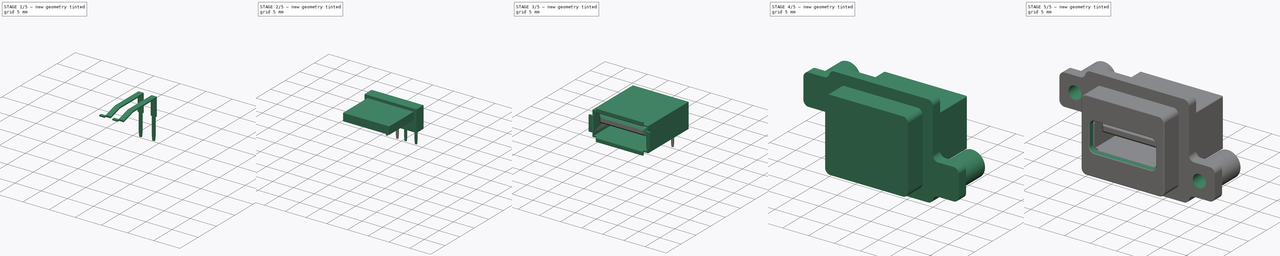
[diagram: build sequence overview — one tinted view per stage of 5, left to right]
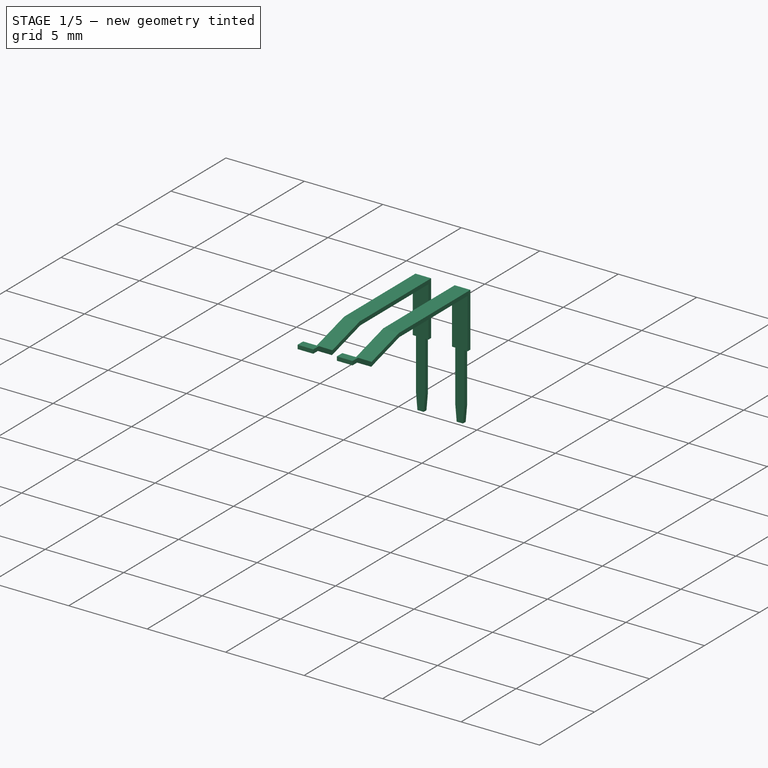
[diagram: stage 1 of 5 — iso view after this stage's code; geometry added in this stage tinted green]
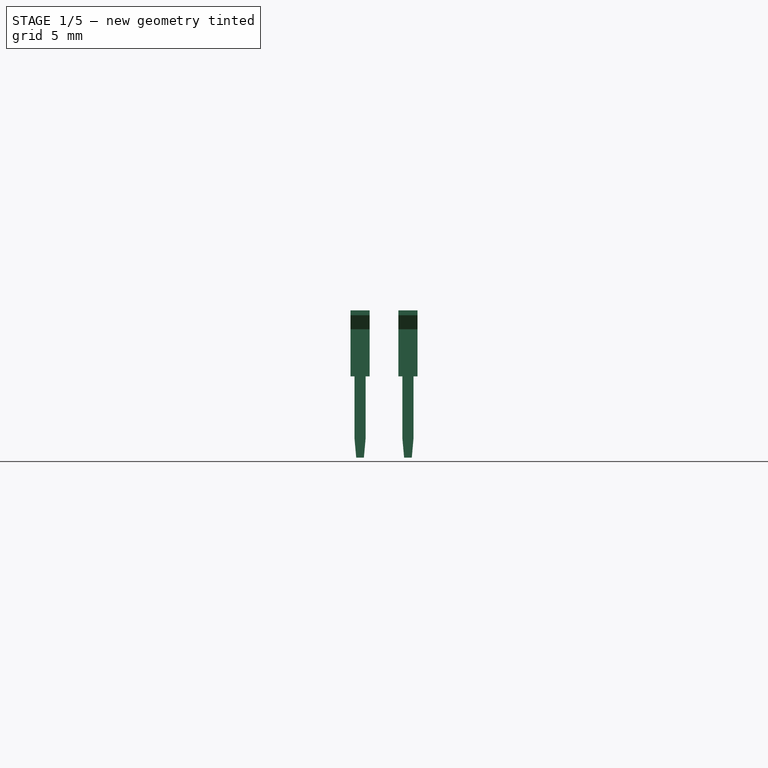
[diagram: stage 1 of 5 — front view after this stage's code; geometry added in this stage tinted green]
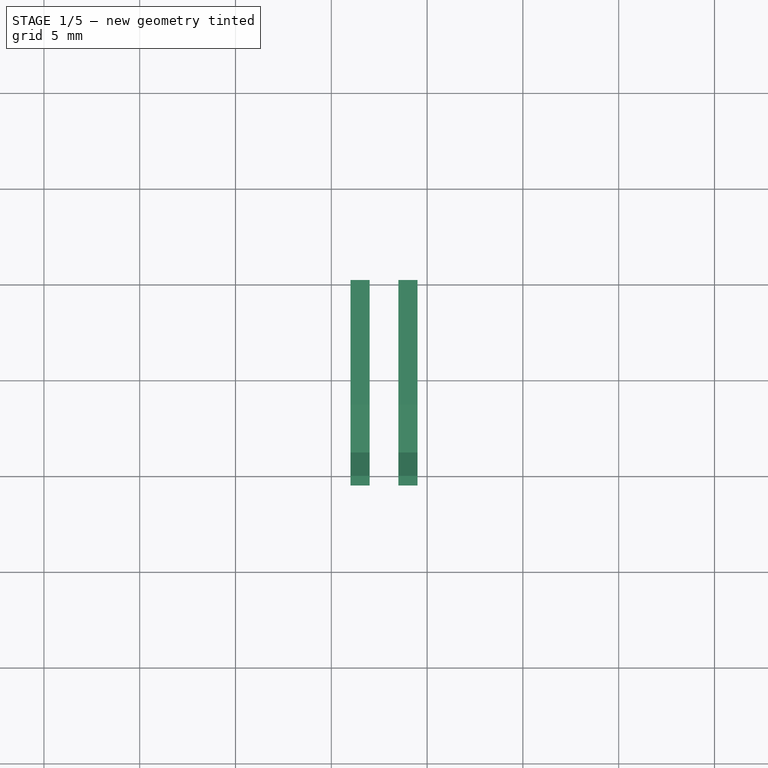
[diagram: stage 1 of 5 — top view after this stage's code; geometry added in this stage tinted green]
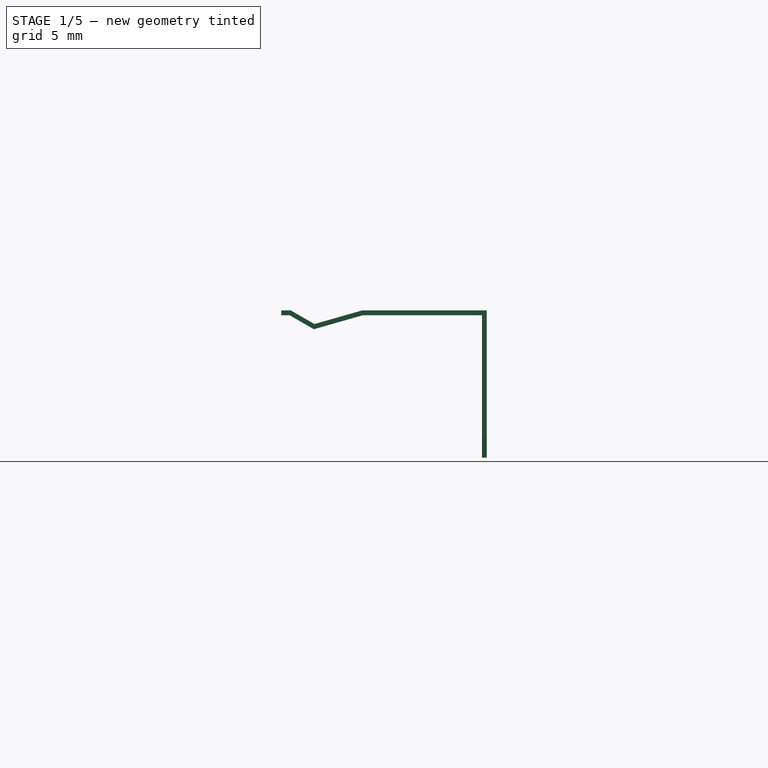
[diagram: stage 1 of 5 — right view after this stage's code; geometry added in this stage tinted green]
FCSTD DOCUMENT  (FreeCAD 1.0R38641 +468 (Git))
Label: MUSB-A111-M1
License: All rights reserved
objects: Sketcher::SketchObject×15, PartDesign::Pad×10, PartDesign::Pocket×7, PartDesign::Body×4, PartDesign::Line×2, PartDesign::Fillet×2, PartDesign::Mirrored×2, Spreadsheet::Sheet×1, PartDesign::Chamfer×1, Part::FeaturePython×1, Part::Mirroring×1, Part::Compound×1
note: 103 computed .brp shape members not serialized (recipe doc carries the construction recipe); baked Part::Feature solids carry a one-line shape summary decoded from their .brp

FEATURE [PartDesign::Body] Body002  label="Insert"
  AllowCompound = false
  Group = -> [Sketch013,Pad007,Pad008,Pocket005,Mirrored,Chamfer]
  Origin = -> Origin002
  Tip = -> Chamfer
FEATURE [Sketcher::SketchObject] Sketch016
  ArcFitTolerance = 0
  AttachmentSupport = -> [YZ_Plane003]
  FullyConstrained = true
  MakeInternals = false
  MapMode = 5
  Placement = pos=(0,0,0) rot=(0.57735,0.57735,0.57735;2.0944rad)
  sketch-geometry (18):
    g0: LineSegment StartX=-0.6 StartY=5.18 StartZ=0 EndX=-0.6 EndY=4.93 EndZ=0
    g1: LineSegment StartX=-0.6 StartY=4.93 StartZ=0 EndX=-0.166874 EndY=4.93 EndZ=0
    g2: LineSegment StartX=-0.166874 StartY=4.93 StartZ=0 EndX=1.1 EndY=4.2 EndZ=0
    g3: LineSegment StartX=1.1 StartY=4.2 StartZ=0 EndX=3.65995 EndY=4.93 EndZ=0
    g4: LineSegment StartX=3.65995 StartY=4.93 StartZ=0 EndX=9.875 EndY=4.93 EndZ=0
    g5: LineSegment StartX=9.875 StartY=4.93 StartZ=0 EndX=9.875 EndY=-2.5 EndZ=0
    g6: LineSegment StartX=9.875 StartY=-2.5 StartZ=0 EndX=10.125 EndY=-2.5 EndZ=0
    g7: LineSegment StartX=10.125 StartY=-2.5 StartZ=0 EndX=10.125 EndY=5.18 EndZ=0
    g8: LineSegment StartX=10.125 StartY=5.18 StartZ=0 EndX=3.625 EndY=5.18 EndZ=0
    g9: LineSegment StartX=3.625 StartY=5.18 StartZ=0 EndX=1.13317 EndY=4.46942 EndZ=0
    g10: LineSegment StartX=1.13317 StartY=4.46942 StartZ=0 EndX=-0.1 EndY=5.18 EndZ=0
    g11: LineSegment StartX=-0.1 StartY=5.18 StartZ=0 EndX=-0.6 EndY=5.18 EndZ=0
    g12: LineSegment [constr] StartX=-0.1 StartY=5.18 StartZ=0 EndX=3.625 EndY=5.18 EndZ=0
    g13: LineSegment [constr] StartX=-0.166874 StartY=4.93 StartZ=0 EndX=-0.0420573 EndY=5.14661 EndZ=0
    g14: LineSegment [constr] StartX=3.65995 StartY=4.93 StartZ=0 EndX=3.59139 EndY=5.17042 EndZ=0
    g15: LineSegment [constr] StartX=9.875 StartY=4.93 StartZ=0 EndX=9.875 EndY=5.18 EndZ=0
    g16: LineSegment [constr] StartX=9.875 StartY=0 StartZ=0 EndX=10 EndY=0 EndZ=0
    g17: LineSegment [constr] StartX=10 StartY=0 StartZ=0 EndX=10.125 EndY=0 EndZ=0
  constraints (54):
    c: Coincident(g0,g1)
    c: Horizontal(g1)
    c: Coincident(g1,g2)
    c: Coincident(g2,g3)
    c: Coincident(g3,g4)
    c: Horizontal(g4)
    c: Coincident(g4,g5)
    c: Vertical(g5)
    c: Coincident(g5,g6)
    c: Coincident(g6,g7)
    c: Vertical(g7)
    c: Coincident(g7,g8)
    c: Horizontal(g8)
    c: Coincident(g8,g9)
    c: Coincident(g9,g10)
    c: Coincident(g10,g11)
    c: Coincident(g11,g0)
    c: Horizontal(g11)
    c: Vertical(g0)
    c: Parallel(g3,g9)
    c: Parallel(g10,g2)
    c: Horizontal(g6)
    c: Equal(g0,g6)
    c: Coincident(g12,g10)
    c: Coincident(g12,g8)
    c: Horizontal(g12)
    c: Coincident(g13,g1)
    c: PointOnObject(g13,g10)
    c: Perpendicular(g2,g13)
    c: Equal(g13,g0)
    c: Coincident(g14,g3)
    c: PointOnObject(g14,g9)
    c: Perpendicular(g3,g14)
    c: Equal(g14,g13)
    c: Coincident(g15,g4)
    c: PointOnObject(g15,g8)
    c: Vertical(g15)
    c: Equal(g15,g6)
    c: DistanceX(g6) = 0.25
    c: PointOnObject(g16,g5)
    c: Horizontal(g16)
    c: Coincident(g17,g16)
    c: PointOnObject(g17,g7)
    c: Horizontal(g17)
    c: Equal(g17,g16)
    c: PointOnObject(g16,g-1)
    c: DistanceX(g-1,g16) = 10
    c: DistanceY(g5,g-1) = 2.5
    c: DistanceY(g7,g7) = 7.68
    c: DistanceX(g0,g-1) = 0.6
    c: DistanceX(g8,g8) = 6.5
    c: DistanceX(g-1,g2) = 1.1
    c: DistanceY(g-1,g2) = 4.2
    c: DistanceX(g11,g11) = 0.5
FEATURE [PartDesign::Pad] Pad009
  Direction = (1,0,0)
  Length = 1
  Length2 = 10
  Midplane = true
  Placement = pos=(0,0,0) rot=(1,1,1;2.0944rad)
  Profile = -> Sketch016
  ReferenceAxis = -> Sketch016 [N_Axis]
  Suppressed = false
  Type = 0
FEATURE [Sketcher::SketchObject] Sketch017
  ArcFitTolerance = 0
  AttachmentSupport = -> [XZ_Plane003]
  FullyConstrained = true
  MakeInternals = false
  MapMode = 5
  Placement = pos=(0,0,0) rot=(1,0,0;1.5708rad)
  sketch-geometry (5):
    g0: LineSegment StartX=0.2 StartY=-2.5 StartZ=0 EndX=0.29 EndY=-1.5 EndZ=0
    g1: LineSegment StartX=0.29 StartY=-1.5 StartZ=0 EndX=0.29 EndY=1.74 EndZ=0
    g2: LineSegment StartX=0.29 StartY=1.74 StartZ=0 EndX=0.5 EndY=1.74 EndZ=0
    g3: LineSegment StartX=0.5 StartY=1.74 StartZ=0 EndX=0.5 EndY=-2.5 EndZ=0
    g4: LineSegment StartX=0.5 StartY=-2.5 StartZ=0 EndX=0.2 EndY=-2.5 EndZ=0
  constraints (15):
    c: Coincident(g0,g1)
    c: Vertical(g1)
    c: Coincident(g1,g2)
    c: Horizontal(g2)
    c: Coincident(g2,g3)
    c: Vertical(g3)
    c: Coincident(g3,g4)
    c: Coincident(g4,g0)
    c: Horizontal(g4)
    c: DistanceX(g-1,g1) = 0.29
    c: DistanceY(g-1,g1) = 1.74
    c: DistanceY(g0,g0) = 1
    c: DistanceX(g-1,g0) = 0.2
    c: DistanceY(g0,g-1) = 2.5
    c: DistanceX(g-1,g3) = 0.5
FEATURE [PartDesign::Pocket] Pocket006
  BaseFeature = -> Pad009
  Direction = (0,1,-2e-16)
  Length = 5
  Length2 = 5
  Placement = pos=(0,0,0) rot=(1,1,1;2.0944rad)
  Profile = -> Sketch017
  ReferenceAxis = -> Sketch017 [N_Axis]
  Suppressed = false
  Type = 1
FEATURE [PartDesign::Mirrored] Mirrored001
  BaseFeature = -> Pocket006
  MirrorPlane = -> Sketch017 [V_Axis]
  Originals = -> [Pocket006]
  Placement = pos=(0,0,0) rot=(1,1,1;2.0944rad)
  Suppressed = false
  TransformMode = 0
FEATURE [PartDesign::Body] Body003
  AllowCompound = false
  Group = -> [Sketch016,Pad009,Sketch017,Pocket006,Mirrored001]
  Origin = -> Origin003
  Tip = -> Mirrored001
FEATURE [Part::FeaturePython] Array  # Draft array (typed FeaturePython)
  Angle = 360
  ArrayType = 0
  Axis = (0,0,1)
  Base = -> Body003
  Center = (0,0,0)
  Count = 2
  Fuse = false
  IntervalAxis = (0,0,0)
  IntervalX = (2.5,0,0)
  IntervalY = (0,100,0)
  IntervalZ = (0,0,100)
  NumberCircles = 3
  NumberPolar = 5
  NumberX = 2
  NumberY = 1
  NumberZ = 1
  Placement = pos=(1,0,0) rot=(0,0,1;0rad)
  RadialDistance = 50
  Symmetry = 1
  TangentialDistance = 25
FEATURE [Part::Mirroring] Part__Mirroring  label="Array (Mirror #1)"
  Base = (0,0,0)
  Normal = (1,0,0)
  Source = -> Array
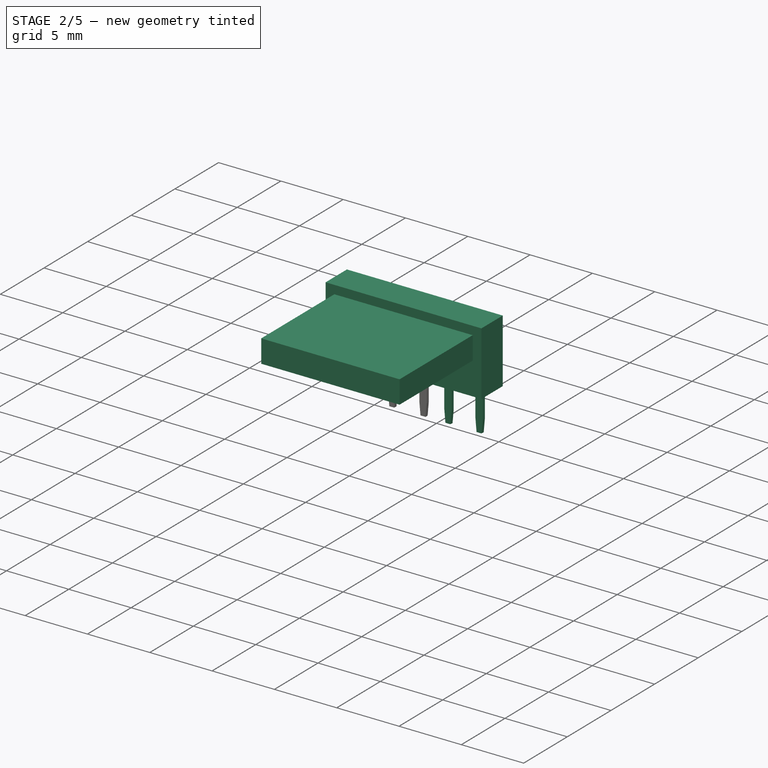
[diagram: stage 2 of 5 — iso view after this stage's code; geometry added in this stage tinted green]
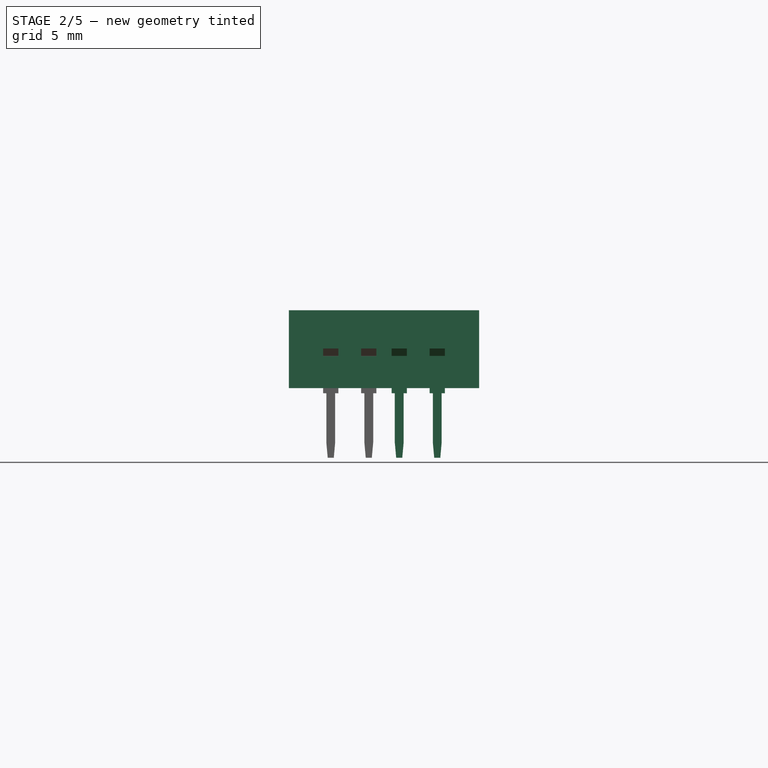
[diagram: stage 2 of 5 — front view after this stage's code; geometry added in this stage tinted green]
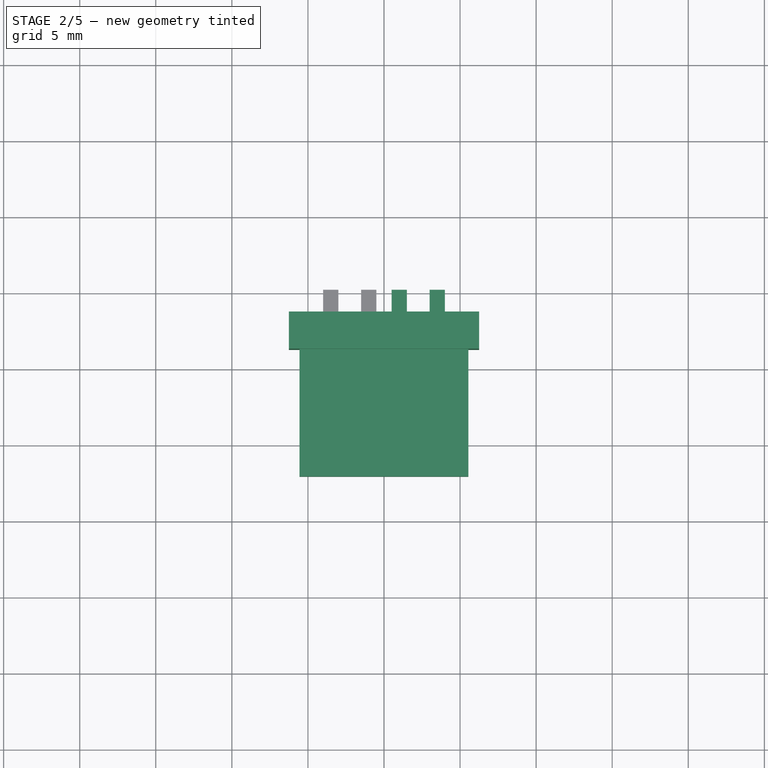
[diagram: stage 2 of 5 — top view after this stage's code; geometry added in this stage tinted green]
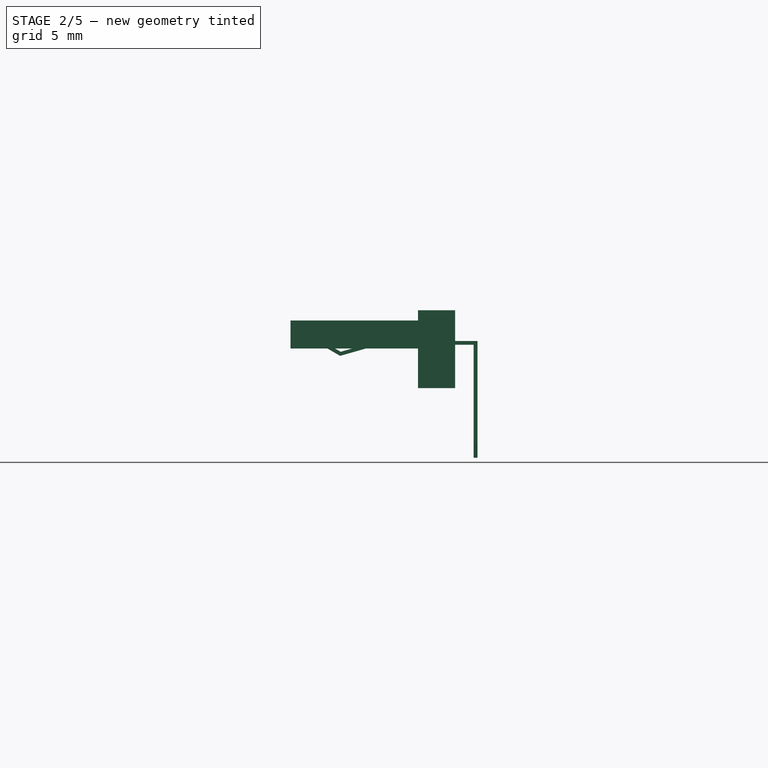
[diagram: stage 2 of 5 — right view after this stage's code; geometry added in this stage tinted green]
FEATURE [PartDesign::Body] Body001  label="Housing"
  AllowCompound = false
  Group = -> [DatumLine001,Sketch009,Pad005,Sketch011,Pad006,Sketch012,Pocket004,Fillet001]
  Origin = -> Origin001
  Tip = -> Fillet001
FEATURE [Sketcher::SketchObject] Sketch013
  ArcFitTolerance = 0
  AttachmentOffset = pos=(0,0,-8.66) rot=(0,0,1;0rad)
  AttachmentSupport = -> [XZ_Plane002]
  FullyConstrained = true
  MakeInternals = false
  MapMode = 5
  Placement = pos=(0,8.66,-1.9e-15) rot=(1,0,0;1.5708rad)
  expr: Constraints[15] = <<Master>>.center
  sketch-geometry (22):
    g0: LineSegment StartX=-6.25 StartY=7.2 StartZ=0 EndX=6.25 EndY=7.2 EndZ=0
    g1: LineSegment StartX=6.25 StartY=7.2 StartZ=0 EndX=6.25 EndY=2.08 EndZ=0
    g2: LineSegment StartX=6.25 StartY=2.08 StartZ=0 EndX=-6.25 EndY=2.08 EndZ=0
    g3: LineSegment StartX=-6.25 StartY=2.08 StartZ=0 EndX=-6.25 EndY=7.2 EndZ=0
    g4: LineSegment [constr] StartX=-6.25 StartY=7.2 StartZ=0 EndX=0 EndY=4.64 EndZ=0
    g5: LineSegment [constr] StartX=0 StartY=4.64 StartZ=0 EndX=6.25 EndY=2.08 EndZ=0
    g6: LineSegment StartX=-5.55 StartY=6.52 StartZ=0 EndX=-5.55 EndY=4.68 EndZ=0
    g7: LineSegment StartX=-5.55 StartY=4.68 StartZ=0 EndX=5.55 EndY=4.68 EndZ=0
    g8: LineSegment StartX=5.55 StartY=4.68 StartZ=0 EndX=5.55 EndY=6.52 EndZ=0
    g9: LineSegment StartX=5.55 StartY=6.52 StartZ=0 EndX=-5.55 EndY=6.52 EndZ=0
    g10: LineSegment StartX=-4 StartY=5.18 StartZ=0 EndX=-4 EndY=4.18 EndZ=0
    g11: LineSegment StartX=-4 StartY=4.18 StartZ=0 EndX=-3 EndY=4.18 EndZ=0
    g12: LineSegment StartX=-3 StartY=4.18 StartZ=0 EndX=-3 EndY=5.18 EndZ=0
    g13: LineSegment StartX=-3 StartY=5.18 StartZ=0 EndX=-4 EndY=5.18 EndZ=0
    g14: LineSegment StartX=-1.5 StartY=5.18 StartZ=0 EndX=-1.5 EndY=4.18 EndZ=0
    g15: LineSegment StartX=-1.5 StartY=4.18 StartZ=0 EndX=-0.5 EndY=4.18 EndZ=0
    g16: LineSegment StartX=-0.5 StartY=4.18 StartZ=0 EndX=-0.5 EndY=5.18 EndZ=0
    g17: LineSegment StartX=-0.5 StartY=5.18 StartZ=0 EndX=-1.5 EndY=5.18 EndZ=0
    g18: LineSegment [constr] StartX=-4 StartY=4.18 StartZ=0 EndX=-3.5 EndY=4.68 EndZ=0
    g19: LineSegment [constr] StartX=-3.5 StartY=4.68 StartZ=0 EndX=-3 EndY=5.18 EndZ=0
    g20: LineSegment [constr] StartX=-1.5 StartY=4.18 StartZ=0 EndX=-1 EndY=4.68 EndZ=0
    g21: LineSegment [constr] StartX=-1 StartY=4.68 StartZ=0 EndX=-0.5 EndY=5.18 EndZ=0
  constraints (61):
    c: Coincident(g0,g1)
    c: Coincident(g1,g2)
    c: Coincident(g2,g3)
    c: Coincident(g3,g0)
    c: Horizontal(g0)
    c: Vertical(g1)
    c: Vertical(g3)
    c: Symmetric(g2,g1,g-2)
    c: Coincident(g4,g0)
    c: Coincident(g5,g4)
    c: Coincident(g5,g1)
    c: Parallel(g4,g5)
    c: Equal(g4,g5)
    c: DistanceX(g2,g2) = 12.5
    c: DistanceY(g1,g1) = 5.12
    c: DistanceY(g-1,g4) = 4.64
    c: Coincident(g6,g7)
    c: Coincident(g7,g8)
    c: Coincident(g8,g9)
    c: Coincident(g9,g6)
    c: Vertical(g6)
    c: Vertical(g8)
    c: Horizontal(g7)
    c: DistanceX(g7,g7) = 11.1
    c: DistanceY(g8,g8) = 1.84
    c: DistanceY(g2,g6) = 2.6
    c: Symmetric(g6,g8,g-2)
    c: Coincident(g10,g11)
    c: Coincident(g11,g12)
    c: Coincident(g12,g13)
    c: Coincident(g13,g10)
    c: Vertical(g10)
    c: Vertical(g12)
    c: Horizontal(g11)
    c: Horizontal(g13)
    c: Coincident(g14,g15)
    c: Coincident(g15,g16)
    c: Coincident(g16,g17)
    c: Coincident(g17,g14)
    c: Vertical(g14)
    c: Vertical(g16)
    c: Horizontal(g15)
    c: Horizontal(g17)
    c: Coincident(g18,g10)
    c: Coincident(g19,g18)
    c: Coincident(g19,g12)
    c: Coincident(g20,g14)
    c: Coincident(g21,g20)
    c: Coincident(g21,g16)
    c: Equal(g18,g19)
    c: Equal(g20,g21)
    c: Equal(g10,g13)
    c: Equal(g14,g17)
    c: Equal(g10,g14)
    c: Parallel(g19,g18)
    c: Parallel(g20,g21)
    c: DistanceY(g10,g10) = 1
    c: DistanceX(g20,g-1) = 1
    c: DistanceX(g18,g-1) = 3.5
    c: PointOnObject(g18,g7)
    c: PointOnObject(g20,g7)
FEATURE [PartDesign::Pad] Pad007
  Direction = (0,-1,2e-16)
  Length = 2.44
  Length2 = 10
  Placement = pos=(0,0,0) rot=(1,0,0;1.5708rad)
  Profile = -> Sketch013 [Edge3,Edge4,Edge1,Edge2]
  ReferenceAxis = -> Sketch013 [N_Axis]
  Suppressed = false
  Type = 0
FEATURE [PartDesign::Pad] Pad008
  BaseFeature = -> Pad007
  Direction = (0,-1,2e-16)
  Length = 10.82
  Length2 = 10
  Placement = pos=(0,0,0) rot=(1,0,0;1.5708rad)
  Profile = -> Sketch013 [Edge6,Edge5,Edge8,Edge7]
  ReferenceAxis = -> Sketch013 [N_Axis]
  Suppressed = false
  Type = 0
FEATURE [PartDesign::Pocket] Pocket005
  BaseFeature = -> Pad008
  Direction = (0,1,-2e-16)
  Length = 9.26
  Length2 = 5
  Placement = pos=(0,0,0) rot=(1,0,0;1.5708rad)
  Profile = -> Sketch013 [Edge10,Edge11,Edge12,Edge9,Edge13,Edge16,Edge15,Edge14]
  ReferenceAxis = -> Sketch013 [N_Axis]
  Refine = true
  Reversed = true
  Suppressed = false
  Type = 0
FEATURE [PartDesign::Mirrored] Mirrored
  BaseFeature = -> Pocket005
  MirrorPlane = -> Sketch013 [V_Axis]
  Originals = -> [Pocket005]
  Placement = pos=(0,0,0) rot=(1,0,0;1.5708rad)
  Suppressed = false
  TransformMode = 0
FEATURE [Part::Compound] Compound  label="Pins"
  Links = -> [Array,Part__Mirroring]
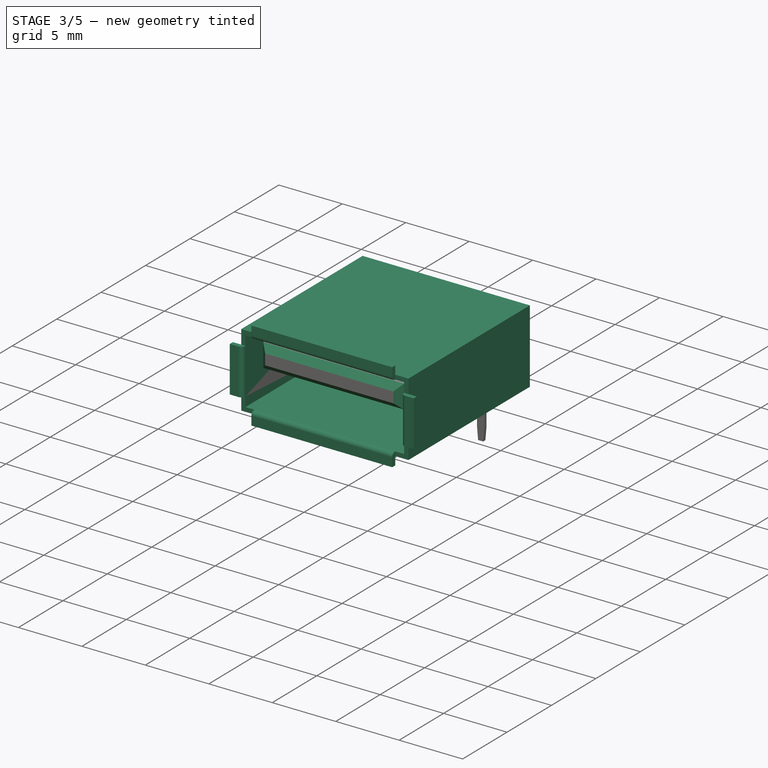
[diagram: stage 3 of 5 — iso view after this stage's code; geometry added in this stage tinted green]
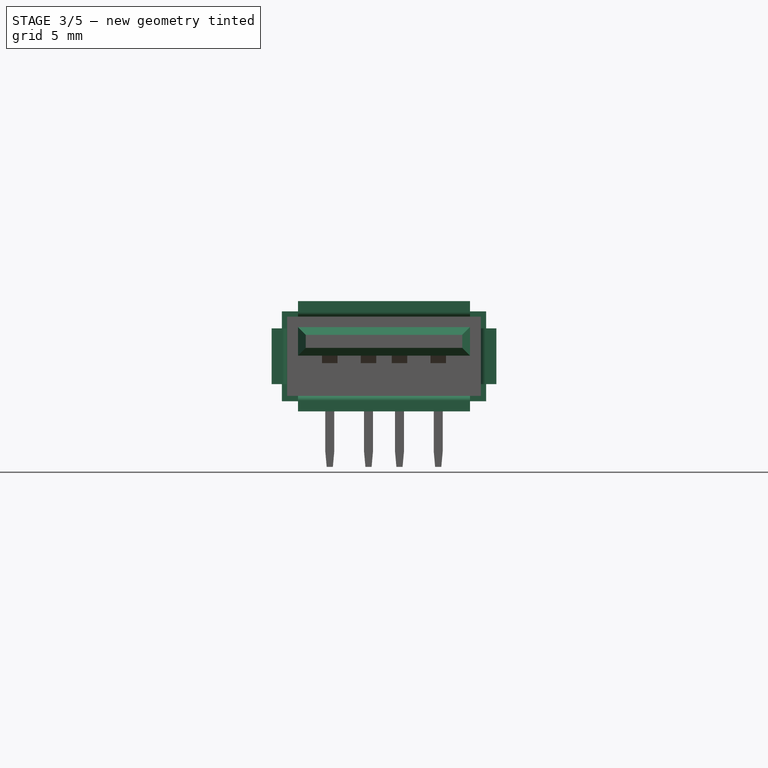
[diagram: stage 3 of 5 — front view after this stage's code; geometry added in this stage tinted green]
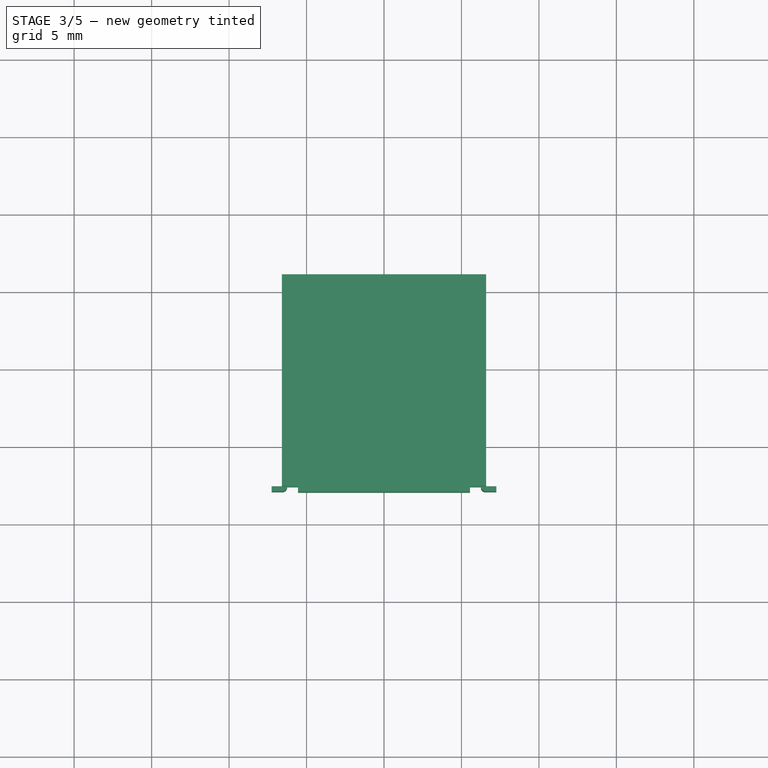
[diagram: stage 3 of 5 — top view after this stage's code; geometry added in this stage tinted green]
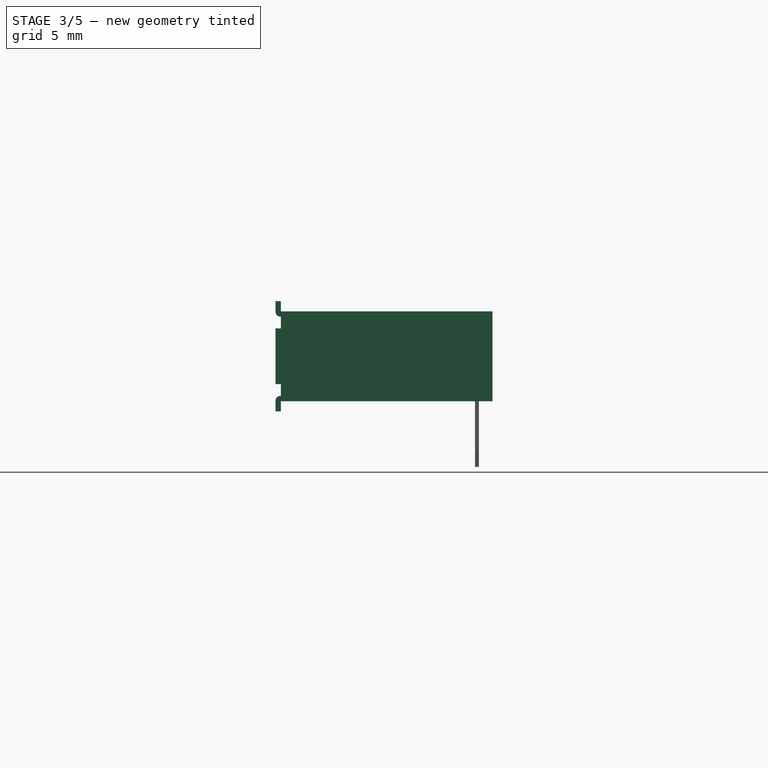
[diagram: stage 3 of 5 — right view after this stage's code; geometry added in this stage tinted green]
FEATURE [PartDesign::Body] Body
  AllowCompound = false
  Group = -> [DatumLine,Sketch,Pad,Sketch001,Pad001,Sketch002,Pad002,Sketch003,Pocket,Sketch004,Pad003,Sketch005,Pocket001,Sketch006,Pocket002,Sketch007,Pad004,Sketch008,Pocket003,Fillet]
  Origin = -> Origin
  Tip = -> Fillet
FEATURE [PartDesign::Line] DatumLine001
  AttacherType = Attacher::AttachEngineLine
  AttachmentOffset = pos=(0,4.64,0) rot=(0,0,1;0rad)
  AttachmentSupport = -> [Y_Axis001]
  Length = 20
  MapMode = 29
  Placement = pos=(0,1e-15,4.64) rot=(0,0.707107,0.707107;3.14159rad)
  ResizeMode = 0
  expr: .AttachmentOffset.Base.y = <<Master>>.center
FEATURE [Sketcher::SketchObject] Sketch009
  ArcFitTolerance = 0
  AttachmentSupport = -> [XZ_Plane001]
  ExternalGeometry = -> [DatumLine001]
  FullyConstrained = true
  MakeInternals = false
  MapMode = 5
  Placement = pos=(0,0,0) rot=(1,0,0;1.5708rad)
  sketch-geometry (12):
    g0: LineSegment StartX=-6.59 StartY=7.54 StartZ=0 EndX=6.59 EndY=7.54 EndZ=0
    g1: LineSegment StartX=6.59 StartY=7.54 StartZ=0 EndX=6.59 EndY=1.74 EndZ=0
    g2: LineSegment StartX=6.59 StartY=1.74 StartZ=0 EndX=-6.59 EndY=1.74 EndZ=0
    g3: LineSegment StartX=-6.59 StartY=1.74 StartZ=0 EndX=-6.59 EndY=7.54 EndZ=0
    g4: LineSegment [constr] StartX=-6.59 StartY=7.54 StartZ=0 EndX=0 EndY=4.64 EndZ=0
    g5: LineSegment [constr] StartX=0 StartY=4.64 StartZ=0 EndX=6.59 EndY=1.74 EndZ=0
    g6: LineSegment StartX=-6.25 StartY=7.2 StartZ=0 EndX=-6.25 EndY=2.08 EndZ=0
    g7: LineSegment StartX=-6.25 StartY=2.08 StartZ=0 EndX=6.25 EndY=2.08 EndZ=0
    g8: LineSegment StartX=6.25 StartY=2.08 StartZ=0 EndX=6.25 EndY=7.2 EndZ=0
    g9: LineSegment StartX=6.25 StartY=7.2 StartZ=0 EndX=-6.25 EndY=7.2 EndZ=0
    g10: LineSegment [constr] StartX=-6.59 StartY=1.74 StartZ=0 EndX=-6.25 EndY=2.08 EndZ=0
    g11: LineSegment [constr] StartX=6.25 StartY=7.2 StartZ=0 EndX=6.59 EndY=7.54 EndZ=0
  constraints (31):
    c: Coincident(g0,g1)
    c: Coincident(g1,g2)
    c: Coincident(g2,g3)
    c: Coincident(g3,g0)
    c: Horizontal(g0)
    c: Vertical(g1)
    c: Vertical(g3)
    c: Symmetric(g2,g1,g-2)
    c: Coincident(g4,g0)
    c: Coincident(g5,g4)
    c: Coincident(g5,g1)
    c: Parallel(g4,g5)
    c: DistanceX(g2,g2) = 13.18
    c: DistanceY(g1,g1) = 5.8
    c: Coincident(g6,g7)
    c: Coincident(g7,g8)
    c: Coincident(g8,g9)
    c: Coincident(g9,g6)
    c: Vertical(g6)
    c: Vertical(g8)
    c: Horizontal(g7)
    c: Horizontal(g9)
    c: DistanceX(g7,g7) = 12.5
    c: DistanceY(g8,g8) = 5.12
    c: Coincident(g10,g2)
    c: Coincident(g10,g6)
    c: Coincident(g11,g8)
    c: Coincident(g11,g0)
    c: Equal(g11,g10)
    c: Parallel(g10,g11)
    c: Coincident(g-3,g4)
FEATURE [PartDesign::Pad] Pad005
  Direction = (0,-1,2e-16)
  Length = 2.66
  Length2 = 11
  Placement = pos=(0,0,0) rot=(1,0,0;1.5708rad)
  Profile = -> Sketch009
  ReferenceAxis = -> Sketch009 [N_Axis]
  Suppressed = false
  Type = 4
FEATURE [Sketcher::SketchObject] Sketch011
  ArcFitTolerance = 0
  AttachmentOffset = pos=(0,0,2.66) rot=(0,0,1;0rad)
  AttachmentSupport = -> [XZ_Plane001]
  ExternalGeometry = -> [DatumLine001]
  FullyConstrained = true
  MakeInternals = false
  MapMode = 5
  Placement = pos=(0,-2.66,6e-16) rot=(1,0,0;1.5708rad)
  sketch-geometry (26):
    g0: LineSegment StartX=-5.55 StartY=7.2 StartZ=0 EndX=5.55 EndY=7.2 EndZ=0
    g1: LineSegment StartX=5.55 StartY=7.2 StartZ=0 EndX=5.55 EndY=8.2 EndZ=0
    g2: LineSegment StartX=5.55 StartY=8.2 StartZ=0 EndX=-5.55 EndY=8.2 EndZ=0
    g3: LineSegment StartX=-5.55 StartY=8.2 StartZ=0 EndX=-5.55 EndY=7.2 EndZ=0
    g4: LineSegment StartX=-5.55 StartY=2.08 StartZ=0 EndX=5.55 EndY=2.08 EndZ=0
    g5: LineSegment StartX=5.55 StartY=2.08 StartZ=0 EndX=5.55 EndY=1.08 EndZ=0
    g6: LineSegment StartX=5.55 StartY=1.08 StartZ=0 EndX=-5.55 EndY=1.08 EndZ=0
    g7: LineSegment StartX=-5.55 StartY=1.08 StartZ=0 EndX=-5.55 EndY=2.08 EndZ=0
    g8: LineSegment StartX=-6.25 StartY=6.44 StartZ=0 EndX=-7.25 EndY=6.44 EndZ=0
    g9: LineSegment StartX=-7.25 StartY=6.44 StartZ=0 EndX=-7.25 EndY=2.84 EndZ=0
    g10: LineSegment StartX=-7.25 StartY=2.84 StartZ=0 EndX=-6.25 EndY=2.84 EndZ=0
    g11: LineSegment StartX=-6.25 StartY=2.84 StartZ=0 EndX=-6.25 EndY=6.44 EndZ=0
    g12: LineSegment StartX=6.25 StartY=6.44 StartZ=0 EndX=7.25 EndY=6.44 EndZ=0
    g13: LineSegment StartX=7.25 StartY=6.44 StartZ=0 EndX=7.25 EndY=2.84 EndZ=0
    g14: LineSegment StartX=7.25 StartY=2.84 StartZ=0 EndX=6.25 EndY=2.84 EndZ=0
    g15: LineSegment StartX=6.25 StartY=2.84 StartZ=0 EndX=6.25 EndY=6.44 EndZ=0
    g16: LineSegment [constr] StartX=-5.55 StartY=7.2 StartZ=0 EndX=-6.25 EndY=7.2 EndZ=0
    g17: LineSegment [constr] StartX=-6.25 StartY=7.2 StartZ=0 EndX=-6.25 EndY=6.44 EndZ=0
    g18: LineSegment [constr] StartX=-6.25 StartY=2.84 StartZ=0 EndX=-6.25 EndY=2.08 EndZ=0
    g19: LineSegment [constr] StartX=-6.25 StartY=2.08 StartZ=0 EndX=-5.55 EndY=2.08 EndZ=0
    g20: LineSegment [constr] StartX=5.55 StartY=2.08 StartZ=0 EndX=6.25 EndY=2.08 EndZ=0
    g21: LineSegment [constr] StartX=6.25 StartY=2.08 StartZ=0 EndX=6.25 EndY=2.84 EndZ=0
    g22: LineSegment [constr] StartX=5.55 StartY=7.2 StartZ=0 EndX=6.25 EndY=7.2 EndZ=0
    g23: LineSegment [constr] StartX=6.25 StartY=7.2 StartZ=0 EndX=6.25 EndY=6.44 EndZ=0
    g24: LineSegment [constr] StartX=-6.25 StartY=7.2 StartZ=0 EndX=0 EndY=4.64 EndZ=0
    g25: LineSegment [constr] StartX=0 StartY=4.64 StartZ=0 EndX=6.25 EndY=2.08 EndZ=0
  constraints (71):
    c: Horizontal(g4)
    c: Horizontal(g0)
    c: Horizontal(g8)
    c: Horizontal(g10)
    c: Horizontal(g2)
    c: Horizontal(g12)
    c: Horizontal(g14)
    c: Vertical(g11)
    c: Vertical(g9)
    c: Vertical(g7)
    c: Vertical(g3)
    c: Vertical(g1)
    c: Vertical(g5)
    c: Vertical(g15)
    c: Vertical(g13)
    c: Vertical(g18)
    c: Vertical(g17)
    c: Vertical(g23)
    c: Vertical(g21)
    c: Horizontal(g16)
    c: Horizontal(g19)
    c: Horizontal(g22)
    c: Horizontal(g20)
    c: Symmetric(g6,g5,g-2)
    c: Coincident(g3,g2)
    c: Coincident(g3,g0)
    c: Coincident(g1,g2)
    c: Coincident(g1,g0)
    c: Coincident(g0,g22)
    c: Coincident(g23,g22)
    c: Coincident(g12,g23)
    c: Coincident(g12,g13)
    c: Coincident(g15,g12)
    c: Coincident(g14,g21)
    c: Coincident(g14,g15)
    c: Coincident(g14,g13)
    c: Coincident(g21,g20)
    c: Coincident(g4,g5)
    c: Coincident(g4,g20)
    c: Coincident(g5,g6)
    c: Coincident(g19,g7)
    c: Coincident(g19,g4)
    c: Coincident(g7,g6)
    c: Coincident(g19,g18)
    c: Coincident(g18,g10)
    c: Coincident(g18,g11)
    c: Coincident(g11,g8)
    c: Coincident(g11,g17)
    c: Coincident(g9,g8)
    c: Coincident(g10,g9)
    c: Coincident(g16,g17)
    c: Coincident(g16,g0)
    c: Equal(g10,g3)
    c: Equal(g3,g12)
    c: Equal(g12,g5)
    c: DistanceY(g1) = 1
    c: Equal(g16,g19)
    c: Equal(g22,g20)
    c: Equal(g23,g21)
    c: Equal(g17,g18)
    c: Equal(g17,g23)
    c: DistanceY(g13,g13) = 3.6
    c: DistanceX(g6,g6) = 11.1
    c: Coincident(g24,g16)
    c: Coincident(g24,g-3)
    c: Coincident(g25,g24)
    c: Coincident(g25,g20)
    c: Equal(g25,g24)
    c: Parallel(g24,g25)
    c: DistanceX(g18,g20) = 12.5
    c: DistanceY(g20,g22) = 5.12
FEATURE [PartDesign::Pad] Pad006
  BaseFeature = -> Pad005
  Direction = (0,-1,2e-16)
  Length = 0.34
  Length2 = 10
  Placement = pos=(0,0,0) rot=(1,0,0;1.5708rad)
  Profile = -> Sketch011
  ReferenceAxis = -> Sketch011 [N_Axis]
  Suppressed = false
  Type = 0
FEATURE [Sketcher::SketchObject] Sketch012
  ArcFitTolerance = 0
  AttachmentSupport = -> [XY_Plane001]
  FullyConstrained = true
  MakeInternals = false
  MapMode = 5
  sketch-geometry (4):
    g0: LineSegment StartX=-5.75 StartY=11 StartZ=0 EndX=5.75 EndY=11 EndZ=0
    g1: LineSegment StartX=5.75 StartY=11 StartZ=0 EndX=5.75 EndY=9 EndZ=0
    g2: LineSegment StartX=5.75 StartY=9 StartZ=0 EndX=-5.75 EndY=9 EndZ=0
    g3: LineSegment StartX=-5.75 StartY=9 StartZ=0 EndX=-5.75 EndY=11 EndZ=0
  constraints (11):
    c: Coincident(g0,g1)
    c: Coincident(g1,g2)
    c: Coincident(g2,g3)
    c: Coincident(g3,g0)
    c: Horizontal(g2)
    c: Vertical(g1)
    c: Vertical(g3)
    c: Symmetric(g0,g0,g-2)
    c: Distance(g1,g1) = 2
    c: DistanceX(g0,g0) = 11.5
    c: DistanceY(g-1,g0) = 11
FEATURE [PartDesign::Pocket] Pocket004
  BaseFeature = -> Pad006
  Direction = (0,0,-1)
  Length = 5
  Length2 = 5
  Placement = pos=(0,0,0) rot=(1,0,0;1.5708rad)
  Profile = -> Sketch012
  ReferenceAxis = -> Sketch012 [N_Axis]
  Refine = true
  Reversed = true
  Suppressed = false
  Type = 0
FEATURE [PartDesign::Fillet] Fillet001
  Base = -> Pocket004 [Edge92,Edge93,Edge94,Edge96]
  BaseFeature = -> Pocket004
  Placement = pos=(0,0,0) rot=(1,0,0;1.5708rad)
  Radius = 0.3
  SupportTransform = false
  Suppressed = false
  UseAllEdges = false
FEATURE [PartDesign::Chamfer] Chamfer
  Angle = 45
  Base = -> Mirrored [Edge96,Edge94,Edge92,Edge86]
  BaseFeature = -> Mirrored
  ChamferType = 0
  FlipDirection = false
  Placement = pos=(0,0,0) rot=(1,0,0;1.5708rad)
  Size = 0.5
  Size2 = 1
  SupportTransform = false
  Suppressed = false
  UseAllEdges = false
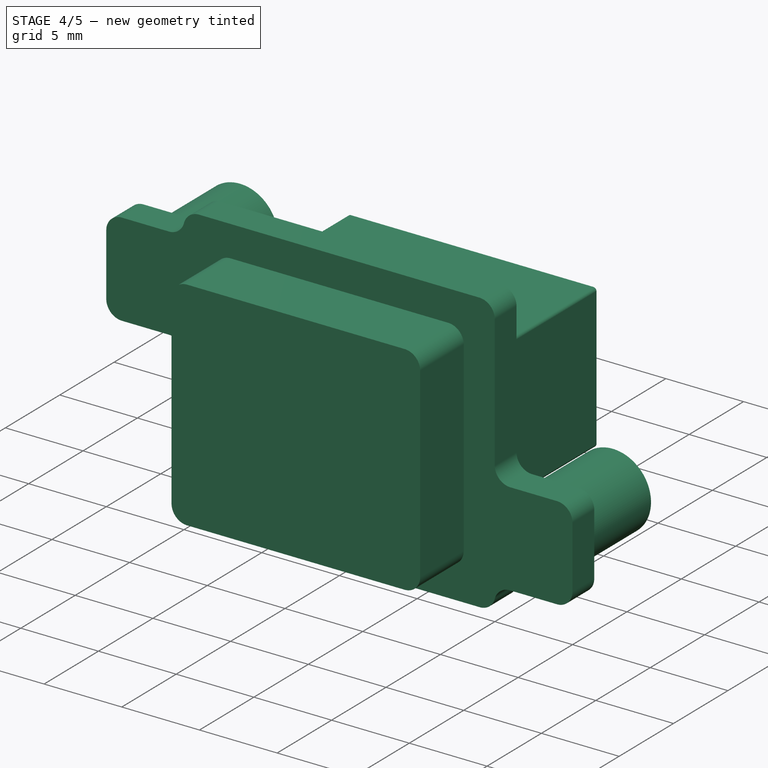
[diagram: stage 4 of 5 — iso view after this stage's code; geometry added in this stage tinted green]
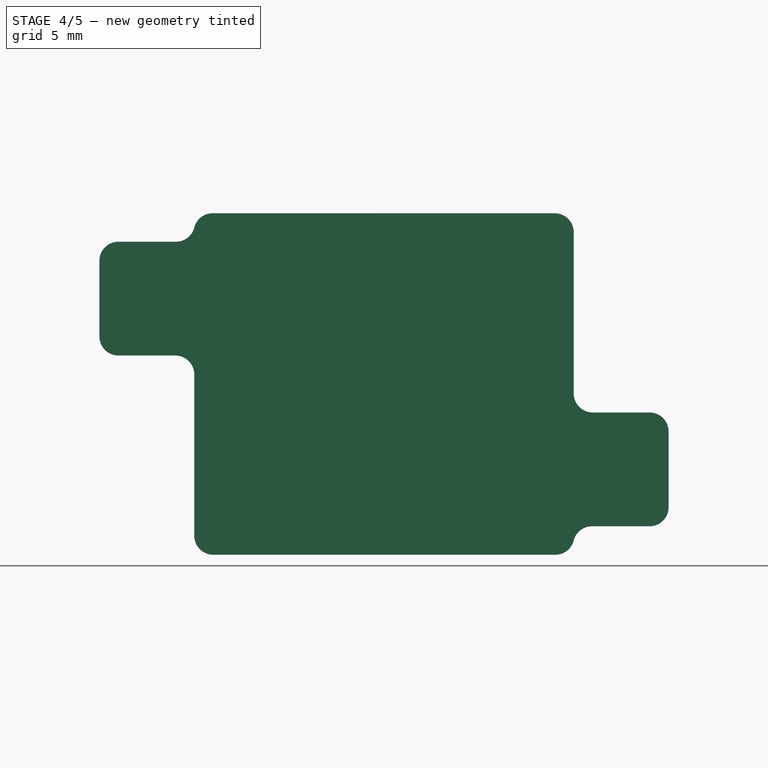
[diagram: stage 4 of 5 — front view after this stage's code; geometry added in this stage tinted green]
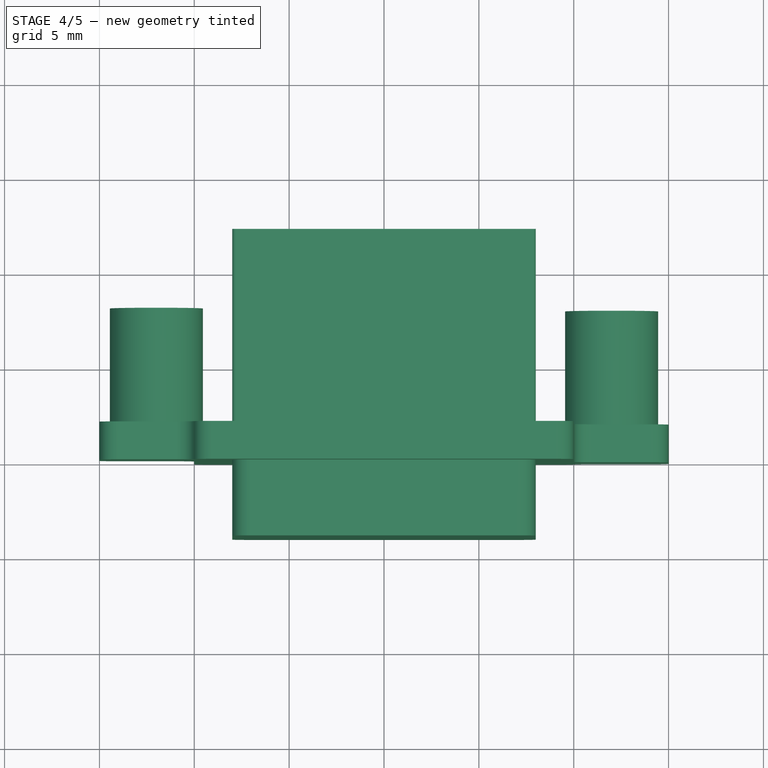
[diagram: stage 4 of 5 — top view after this stage's code; geometry added in this stage tinted green]
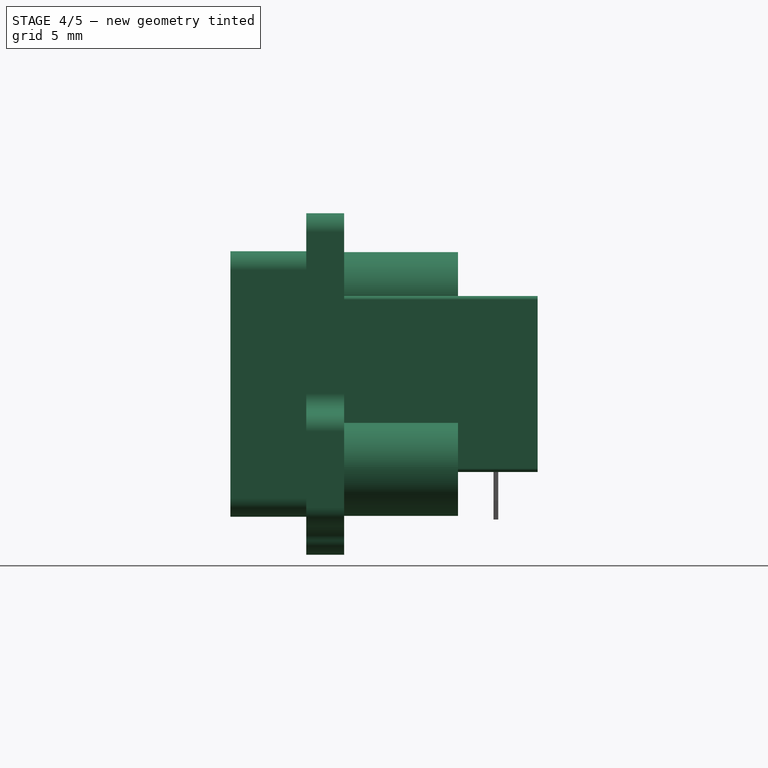
[diagram: stage 4 of 5 — right view after this stage's code; geometry added in this stage tinted green]
FEATURE [Spreadsheet::Sheet] Spreadsheet  label="Master"
  cells = A1='Constants; A2='metal back; B2(metal_back)==10.2 mm; D2='Length of back section; A3='metal middle; B3(metal_middle)==2 mm; D3='Length of middle section; A4='metal front; B4(metal_front)==4 mm; D4='Length of front section; A5='mnt spacing z/x; B5(mnt_z)==9 mm; C5(mnt_x)==24 mm; D5='Mounting hole vertical (z)/horizontal (x) spacing; A7='Vertical offset constants; A8='center; B8(center)==4.64 mm; D8='Center line position offset; A10='Calculated; A11='metal back total; B11(metal_back_tot)==metal_middle + metal_back; D11='Length from origin to metal back; A12='back plane offset; B12(back_offset)==metal_back_tot; D12='Offset to back of shell
FEATURE [PartDesign::Line] DatumLine
  AttacherType = Attacher::AttachEngineLine
  AttachmentOffset = pos=(0,4.64,0) rot=(0,0,1;0rad)
  AttachmentSupport = -> [Y_Axis]
  Length = 20
  MapMode = 29
  Placement = pos=(0,1e-15,4.64) rot=(0,0.707107,0.707107;3.14159rad)
  ResizeMode = 0
  expr: .AttachmentOffset.Base.y = <<Master>>.center
FEATURE [Sketcher::SketchObject] Sketch
  ArcFitTolerance = 0
  AttachmentSupport = -> [XZ_Plane]
  ExternalGeometry = -> [DatumLine]
  FullyConstrained = true
  MakeInternals = false
  MapMode = 5
  Placement = pos=(0,0,0) rot=(1,0,0;1.5708rad)
  sketch-geometry (39):
    g0: LineSegment StartX=9 StartY=13.64 StartZ=0 EndX=-9.03176 EndY=13.64 EndZ=0
    g1: LineSegment StartX=-10.9682 StartY=12.14 StartZ=0 EndX=-14 EndY=12.14 EndZ=0
    g2: LineSegment StartX=-15 StartY=11.14 StartZ=0 EndX=-15 EndY=7.14 EndZ=0
    g3: LineSegment StartX=-14 StartY=6.14 StartZ=0 EndX=-11 EndY=6.14 EndZ=0
    g4: LineSegment StartX=-10 StartY=5.14 StartZ=0 EndX=-10 EndY=-3.36 EndZ=0
    g5: LineSegment StartX=-9 StartY=-4.36 StartZ=0 EndX=9.03176 EndY=-4.36 EndZ=0
    g6: LineSegment StartX=10.9682 StartY=-2.86 StartZ=0 EndX=14 EndY=-2.86 EndZ=0
    g7: LineSegment StartX=15 StartY=-1.86 StartZ=0 EndX=15 EndY=2.14 EndZ=0
    g8: LineSegment StartX=14 StartY=3.14 StartZ=0 EndX=11 EndY=3.14 EndZ=0
    g9: LineSegment StartX=10 StartY=4.14 StartZ=0 EndX=10 EndY=12.64 EndZ=0
    g10: LineSegment [constr] StartX=-10 StartY=12.89 StartZ=0 EndX=-10 EndY=6.14 EndZ=0
    g11: LineSegment [constr] StartX=10 StartY=3.14 StartZ=0 EndX=10 EndY=-3.61 EndZ=0
    g12: ArcOfCircle CenterX=-9.03176 CenterY=12.64 CenterZ=0 NormalX=0 NormalY=0 NormalZ=1 AngleXU=0 Radius=1 StartAngle=1.5708 EndAngle=2.8889
    g13: ArcOfCircle CenterX=-10.9682 CenterY=13.14 CenterZ=0 NormalX=0 NormalY=0 NormalZ=1 AngleXU=0 Radius=1 StartAngle=4.71239 EndAngle=6.03051
    g14: LineSegment [constr] StartX=-10.9682 StartY=13.14 StartZ=0 EndX=-10.9682 EndY=12.14 EndZ=0
    g15: LineSegment [constr] StartX=-9.03176 StartY=13.64 StartZ=0 EndX=-9.03176 EndY=12.64 EndZ=0
    g16: ArcOfCircle CenterX=10.9682 CenterY=-3.86 CenterZ=0 NormalX=0 NormalY=0 NormalZ=1 AngleXU=0 Radius=1 StartAngle=1.5708 EndAngle=2.88892
    g17: ArcOfCircle CenterX=9.03176 CenterY=-3.36 CenterZ=0 NormalX=0 NormalY=0 NormalZ=1 AngleXU=0 Radius=1 StartAngle=4.71239 EndAngle=6.0305
    g18: LineSegment [constr] StartX=9.03176 StartY=-3.36 StartZ=0 EndX=9.03176 EndY=-4.36 EndZ=0
    g19: LineSegment [constr] StartX=10.9682 StartY=-2.86 StartZ=0 EndX=10.9682 EndY=-3.86 EndZ=0
    g20: LineSegment [constr] StartX=10 StartY=3.14 StartZ=0 EndX=-10 EndY=3.14 EndZ=0
    g21: ArcOfCircle CenterX=-14 CenterY=11.14 CenterZ=0 NormalX=0 NormalY=0 NormalZ=1 AngleXU=0 Radius=1 StartAngle=1.5708 EndAngle=3.14159
    g22: GeomPoint [constr] X=-15 Y=12.14 Z=0
    g23: ArcOfCircle CenterX=-14 CenterY=7.14 CenterZ=0 NormalX=0 NormalY=0 NormalZ=1 AngleXU=0 Radius=1 StartAngle=3.14159 EndAngle=4.71239
    g24: GeomPoint [constr] X=-15 Y=6.14 Z=0
    g25: ArcOfCircle CenterX=14 CenterY=2.14 CenterZ=0 NormalX=0 NormalY=0 NormalZ=1 AngleXU=0 Radius=1 StartAngle=0 EndAngle=1.5708
    g26: GeomPoint [constr] X=15 Y=3.14 Z=0
    g27: ArcOfCircle CenterX=14 CenterY=-1.86 CenterZ=0 NormalX=0 NormalY=0 NormalZ=1 AngleXU=0 Radius=1 StartAngle=4.71239 EndAngle=6.28319
    g28: GeomPoint [constr] X=15 Y=-2.86 Z=0
    g29: ArcOfCircle CenterX=-11 CenterY=5.14 CenterZ=0 NormalX=0 NormalY=0 NormalZ=1 AngleXU=0 Radius=1 StartAngle=0 EndAngle=1.5708
    g30: GeomPoint [constr] X=-10 Y=6.14 Z=0
    g31: ArcOfCircle CenterX=11 CenterY=4.14 CenterZ=0 NormalX=0 NormalY=0 NormalZ=1 AngleXU=0 Radius=1 StartAngle=3.14159 EndAngle=4.71239
    g32: GeomPoint [constr] X=10 Y=3.14 Z=0
    g33: ArcOfCircle CenterX=9 CenterY=12.64 CenterZ=0 NormalX=0 NormalY=0 NormalZ=1 AngleXU=0 Radius=1 StartAngle=6e-16 EndAngle=1.5708
    g34: GeomPoint [constr] X=10 Y=13.64 Z=0
    g35: ArcOfCircle CenterX=-9 CenterY=-3.36 CenterZ=0 NormalX=0 NormalY=0 NormalZ=1 AngleXU=0 Radius=1 StartAngle=3.14159 EndAngle=4.71239
    g36: GeomPoint [constr] X=-10 Y=-4.36 Z=0
    g37: LineSegment [constr] StartX=9 StartY=12.64 StartZ=0 EndX=0 EndY=4.64 EndZ=0
    g38: LineSegment [constr] StartX=0 StartY=4.64 StartZ=0 EndX=-9 EndY=-3.36 EndZ=0
  constraints (96):
    c: Horizontal(g0)
    c: Horizontal(g1)
    c: Horizontal(g3)
    c: Horizontal(g8)
    c: Vertical(g4)
    c: Vertical(g9)
    c: Horizontal(g6)
    c: Vertical(g7)
    c: Vertical(g2)
    c: DistanceX(g24,g28) = 30
    c: Coincident(g10,g30)
    c: Vertical(g10)
    c: Coincident(g11,g32)
    c: Vertical(g11)
    c: Coincident(g13,g1)
    c: Coincident(g13,g12)
    c: Coincident(g12,g0)
    c: Coincident(g14,g13)
    c: Coincident(g14,g1)
    c: Vertical(g14)
    c: Coincident(g15,g0)
    c: Coincident(g15,g12)
    c: Vertical(g15)
    c: Equal(g14,g15)
    c: Radius(g12) = 1
    c: Tangent(g12,g13)
    c: Coincident(g10,g12)
    c: Coincident(g6,g16)
    c: Coincident(g17,g5)
    c: Coincident(g16,g17)
    c: Tangent(g17,g16)
    c: Coincident(g18,g5)
    c: Vertical(g18)
    c: Coincident(g17,g18)
    c: Coincident(g19,g16)
    c: Vertical(g19)
    c: Coincident(g6,g19)
    c: Equal(g19,g18)
    c: Equal(g15,g18)
    c: Coincident(g16,g11)
    c: DistanceX(g10,g34) = 20
    c: DistanceY(g5,g34) = 18
    c: Horizontal(g5)
    c: Coincident(g20,g32)
    c: PointOnObject(g20,g4)
    c: Symmetric(g20,g32,g-2)
    c: Distance(g22,g24) = 6
    c: DistanceY(g26,g34) = 10.5
    c: PointOnObject(g22,g2)
    c: PointOnObject(g22,g1)
    c: Tangent(g2,g21) = -1.5708
    c: Tangent(g1,g21) = -1.5708
    c: PointOnObject(g24,g2)
    c: PointOnObject(g24,g3)
    c: Tangent(g2,g23) = -1.5708
    c: Tangent(g3,g23) = -1.5708
    c: PointOnObject(g26,g8)
    c: PointOnObject(g26,g7)
    c: Tangent(g8,g25) = -1.5708
    c: Tangent(g7,g25) = -1.5708
    c: PointOnObject(g28,g7)
    c: PointOnObject(g28,g6)
    c: Tangent(g7,g27) = -1.5708
    c: Tangent(g6,g27) = -1.5708
    c: Equal(g27,g25)
    c: Equal(g25,g21)
    c: Equal(g21,g23)
    c: Equal(g13,g21)
    c: Equal(g2,g7)
    c: PointOnObject(g30,g3)
    c: PointOnObject(g30,g4)
    c: Tangent(g3,g29) = 1.5708
    c: Tangent(g4,g29) = 1.5708
    c: PointOnObject(g32,g9)
    c: PointOnObject(g32,g8)
    c: Tangent(g9,g31) = 1.5708
    c: Tangent(g8,g31) = 1.5708
    c: PointOnObject(g34,g9)
    c: PointOnObject(g34,g0)
    c: Tangent(g9,g33) = -1.5708
    c: Tangent(g0,g33) = -1.5708
    c: PointOnObject(g36,g4)
    c: PointOnObject(g36,g5)
    c: Tangent(g4,g35) = -1.5708
    c: Tangent(g5,g35) = -1.5708
    c: Equal(g35,g29)
    c: Equal(g29,g33)
    c: Equal(g33,g31)
    c: Equal(g33,g13)
    c: Equal(g3,g8)
    c: Equal(g4,g9)
    c: Coincident(g37,g33)
    c: Coincident(g37,g-3)
    c: Coincident(g38,g37)
    c: Coincident(g38,g35)
    c: Equal(g38,g37)
FEATURE [PartDesign::Pad] Pad
  Direction = (0,-1,2e-16)
  Length = 2
  Length2 = 10
  Placement = pos=(0,0,0) rot=(1,0,0;1.5708rad)
  Profile = -> Sketch
  ReferenceAxis = -> Sketch [N_Axis]
  Reversed = true
  Suppressed = false
  Type = 0
  expr: Length = <<Master>>.metal_middle
FEATURE [Sketcher::SketchObject] Sketch001
  ArcFitTolerance = 0
  AttachmentSupport = -> [XZ_Plane]
  ExternalGeometry = -> [DatumLine]
  FullyConstrained = true
  MakeInternals = false
  MapMode = 5
  Placement = pos=(0,0,0) rot=(1,0,0;1.5708rad)
  sketch-geometry (14):
    g0: LineSegment StartX=-7 StartY=11.64 StartZ=0 EndX=7 EndY=11.64 EndZ=0
    g1: LineSegment StartX=8 StartY=10.64 StartZ=0 EndX=8 EndY=-1.36 EndZ=0
    g2: LineSegment StartX=7 StartY=-2.36 StartZ=0 EndX=-7 EndY=-2.36 EndZ=0
    g3: LineSegment StartX=-8 StartY=-1.36 StartZ=0 EndX=-8 EndY=10.64 EndZ=0
    g4: ArcOfCircle CenterX=-7 CenterY=10.64 CenterZ=0 NormalX=0 NormalY=0 NormalZ=1 AngleXU=0 Radius=1 StartAngle=1.5708 EndAngle=3.14159
    g5: GeomPoint [constr] X=-8 Y=11.64 Z=0
    g6: ArcOfCircle CenterX=7 CenterY=10.64 CenterZ=0 NormalX=0 NormalY=0 NormalZ=1 AngleXU=0 Radius=1 StartAngle=4.1e-15 EndAngle=1.5708
    g7: GeomPoint [constr] X=8 Y=11.64 Z=0
    g8: ArcOfCircle CenterX=7 CenterY=-1.36 CenterZ=0 NormalX=0 NormalY=0 NormalZ=1 AngleXU=0 Radius=1 StartAngle=4.71239 EndAngle=6.28319
    g9: GeomPoint [constr] X=8 Y=-2.36 Z=0
    g10: ArcOfCircle CenterX=-7 CenterY=-1.36 CenterZ=0 NormalX=0 NormalY=0 NormalZ=1 AngleXU=0 Radius=1 StartAngle=3.14159 EndAngle=4.71239
    g11: GeomPoint [constr] X=-8 Y=-2.36 Z=0
    g12: LineSegment [constr] StartX=-7 StartY=10.64 StartZ=0 EndX=0 EndY=4.64 EndZ=0
    g13: LineSegment [constr] StartX=0 StartY=4.64 StartZ=0 EndX=7 EndY=-1.36 EndZ=0
  constraints (32):
    c: Horizontal(g0)
    c: Vertical(g1)
    c: Vertical(g3)
    c: DistanceY(g11,g5) = 14
    c: DistanceX(g11,g9) = 16
    c: PointOnObject(g5,g0)
    c: PointOnObject(g5,g3)
    c: Tangent(g0,g4) = 1.5708
    c: Tangent(g3,g4) = 1.5708
    c: PointOnObject(g7,g0)
    c: PointOnObject(g7,g1)
    c: Tangent(g0,g6) = 1.5708
    c: Tangent(g1,g6) = 1.5708
    c: PointOnObject(g9,g1)
    c: PointOnObject(g9,g2)
    c: Tangent(g1,g8) = 1.5708
    c: Tangent(g2,g8) = 1.5708
    c: PointOnObject(g11,g2)
    c: PointOnObject(g11,g3)
    c: Tangent(g2,g10) = 1.5708
    c: Tangent(g3,g10) = 1.5708
    c: Equal(g10,g4)
    c: Equal(g4,g6)
    c: Equal(g6,g8)
    c: Radius(g4) = 1
    c: Horizontal(g2)
    c: Coincident(g12,g4)
    c: Coincident(g12,g-3)
    c: Coincident(g13,g12)
    c: Coincident(g13,g8)
    c: Equal(g13,g12)
    c: Parallel(g12,g13)
FEATURE [PartDesign::Pad] Pad001
  BaseFeature = -> Pad
  Direction = (0,-1,2e-16)
  Length = 4
  Length2 = 10
  Placement = pos=(0,0,0) rot=(1,0,0;1.5708rad)
  Profile = -> Sketch001
  ReferenceAxis = -> Sketch001 [N_Axis]
  Suppressed = false
  Type = 0
  expr: Length = <<Master>>.metal_front
FEATURE [Sketcher::SketchObject] Sketch002
  ArcFitTolerance = 0
  AttachmentSupport = -> [XZ_Plane]
  ExternalGeometry = -> [DatumLine]
  FullyConstrained = true
  MakeInternals = false
  MapMode = 5
  Placement = pos=(0,0,0) rot=(1,0,0;1.5708rad)
  sketch-geometry (14):
    g0: LineSegment StartX=-7.8 StartY=6.4e-15 StartZ=0 EndX=7.8 EndY=6.4e-15 EndZ=0
    g1: LineSegment StartX=8 StartY=0.2 StartZ=0 EndX=8 EndY=9.08 EndZ=0
    g2: LineSegment StartX=7.8 StartY=9.28 StartZ=0 EndX=-7.8 EndY=9.28 EndZ=0
    g3: LineSegment StartX=-8 StartY=9.08 StartZ=0 EndX=-8 EndY=0.2 EndZ=0
    g4: ArcOfCircle CenterX=-7.8 CenterY=9.08 CenterZ=0 NormalX=0 NormalY=0 NormalZ=1 AngleXU=0 Radius=0.2 StartAngle=1.5708 EndAngle=3.14159
    g5: GeomPoint [constr] X=-8 Y=9.28 Z=0
    g6: ArcOfCircle CenterX=7.8 CenterY=9.08 CenterZ=0 NormalX=0 NormalY=0 NormalZ=1 AngleXU=0 Radius=0.2 StartAngle=-2.7e-15 EndAngle=1.5708
    g7: GeomPoint [constr] X=8 Y=9.28 Z=0
    g8: ArcOfCircle CenterX=7.8 CenterY=0.2 CenterZ=0 NormalX=0 NormalY=0 NormalZ=1 AngleXU=0 Radius=0.2 StartAngle=4.71239 EndAngle=6.28319
    g9: GeomPoint [constr] X=8 Y=-8.5e-15 Z=0
    g10: ArcOfCircle CenterX=-7.8 CenterY=0.2 CenterZ=0 NormalX=0 NormalY=0 NormalZ=1 AngleXU=0 Radius=0.2 StartAngle=3.14159 EndAngle=4.71239
    g11: GeomPoint [constr] X=-8 Y=-8.5e-15 Z=0
    g12: LineSegment [constr] StartX=-7.8 StartY=9.08 StartZ=0 EndX=0 EndY=4.64 EndZ=0
    g13: LineSegment [constr] StartX=0 StartY=4.64 StartZ=0 EndX=7.8 EndY=0.2 EndZ=0
  constraints (32):
    c: Horizontal(g2)
    c: Vertical(g1)
    c: Vertical(g3)
    c: DistanceX(g11,g9) = 16
    c: DistanceY(g11,g5) = 9.28
    c: PointOnObject(g5,g2)
    c: PointOnObject(g5,g3)
    c: Tangent(g2,g4) = -1.5708
    c: Tangent(g3,g4) = -1.5708
    c: PointOnObject(g7,g2)
    c: PointOnObject(g7,g1)
    c: Tangent(g2,g6) = -1.5708
    c: Tangent(g1,g6) = -1.5708
    c: PointOnObject(g9,g1)
    c: PointOnObject(g9,g0)
    c: Tangent(g1,g8) = -1.5708
    c: Tangent(g0,g8) = -1.5708
    c: PointOnObject(g11,g0)
    c: PointOnObject(g11,g3)
    c: Tangent(g0,g10) = -1.5708
    c: Tangent(g3,g10) = -1.5708
    c: Equal(g4,g6)
    c: Equal(g6,g8)
    c: Equal(g8,g10)
    c: Radius(g4) = 0.2
    c: Coincident(g12,g4)
    c: Coincident(g12,g-3)
    c: Coincident(g13,g12)
    c: Coincident(g13,g8)
    c: Equal(g12,g13)
    c: Parallel(g12,g13)
    c: Horizontal(g0)
FEATURE [PartDesign::Pad] Pad002
  BaseFeature = -> Pad001
  Direction = (0,-1,2e-16)
  Length = 12.2
  Length2 = 10
  Placement = pos=(0,0,0) rot=(1,0,0;1.5708rad)
  Profile = -> Sketch002
  ReferenceAxis = -> Sketch002 [N_Axis]
  Reversed = true
  Suppressed = false
  Type = 0
  expr: Length = <<Master>>.metal_back_tot
FEATURE [Sketcher::SketchObject] Sketch003
  ArcFitTolerance = 0
  AttachmentOffset = pos=(0,0,-12.2) rot=(0,0,1;0rad)
  AttachmentSupport = -> [XZ_Plane]
  ExternalGeometry = -> [DatumLine]
  FullyConstrained = true
  MakeInternals = false
  MapMode = 5
  Placement = pos=(0,12.2,-2.7e-15) rot=(1,0,0;1.5708rad)
  expr: .AttachmentOffset.Base.z = -<<Master>>.back_offset
  sketch-geometry (6):
    g0: LineSegment StartX=-7.5 StartY=8.78 StartZ=0 EndX=7.5 EndY=8.78 EndZ=0
    g1: LineSegment StartX=7.5 StartY=8.78 StartZ=0 EndX=7.5 EndY=0.5 EndZ=0
    g2: LineSegment StartX=7.5 StartY=0.5 StartZ=0 EndX=-7.5 EndY=0.5 EndZ=0
    g3: LineSegment StartX=-7.5 StartY=0.5 StartZ=0 EndX=-7.5 EndY=8.78 EndZ=0
    g4: LineSegment [constr] StartX=-7.5 StartY=8.78 StartZ=0 EndX=0 EndY=4.64 EndZ=0
    g5: LineSegment [constr] StartX=0 StartY=4.64 StartZ=0 EndX=7.5 EndY=0.5 EndZ=0
  constraints (16):
    c: Coincident(g0,g1)
    c: Coincident(g1,g2)
    c: Coincident(g2,g3)
    c: Coincident(g3,g0)
    c: Horizontal(g2)
    c: Vertical(g1)
    c: Vertical(g3)
    c: DistanceY(g3) = 8.28
    c: DistanceX(g0) = 15
    c: Coincident(g4,g0)
    c: Coincident(g4,g-3)
    c: Coincident(g5,g4)
    c: Coincident(g5,g1)
    c: Equal(g5,g4)
    c: Horizontal(g0)
    c: Parallel(g4,g5)
FEATURE [PartDesign::Pocket] Pocket
  BaseFeature = -> Pad002
  Direction = (0,1,-2e-16)
  Length = 15.2
  Length2 = 5
  Placement = pos=(0,0,0) rot=(1,0,0;1.5708rad)
  Profile = -> Sketch003
  ReferenceAxis = -> Sketch003 [N_Axis]
  Reversed = true
  Suppressed = false
  Type = 0
FEATURE [Sketcher::SketchObject] Sketch004
  ArcFitTolerance = 0
  AttachmentSupport = -> [XZ_Plane]
  ExternalGeometry = -> [DatumLine]
  FullyConstrained = true
  MakeInternals = false
  MapMode = 5
  Placement = pos=(0,0,0) rot=(1,0,0;1.5708rad)
  expr: Constraints[7] = <<Master>>.mnt_z
  expr: Constraints[9] = <<Master>>.mnt_x
  sketch-geometry (4):
    g0: Circle CenterX=-12 CenterY=9.14 CenterZ=0 NormalX=0 NormalY=0 NormalZ=1 AngleXU=0 Radius=2.45
    g1: Circle CenterX=12 CenterY=0.14 CenterZ=0 NormalX=0 NormalY=0 NormalZ=1 AngleXU=0 Radius=2.45
    g2: LineSegment [constr] StartX=-12 StartY=9.14 StartZ=0 EndX=0 EndY=4.64 EndZ=0
    g3: LineSegment [constr] StartX=0 StartY=4.64 StartZ=0 EndX=12 EndY=0.14 EndZ=0
  constraints (10):
    c: Equal(g1,g0)
    c: Radius(g0) = 2.45
    c: Coincident(g2,g0)
    c: Coincident(g2,g-3)
    c: Coincident(g3,g2)
    c: Coincident(g3,g1)
    c: Equal(g3,g2)
    c: DistanceY(g1,g0) = 9
    c: Parallel(g3,g2)
    c: DistanceX(g0,g1) = 24
FEATURE [PartDesign::Pad] Pad003
  BaseFeature = -> Pocket
  Direction = (0,-1,2e-16)
  Length = 8
  Length2 = 10
  Placement = pos=(0,0,0) rot=(1,0,0;1.5708rad)
  Profile = -> Sketch004
  ReferenceAxis = -> Sketch004 [N_Axis]
  Reversed = true
  Suppressed = false
  Type = 0
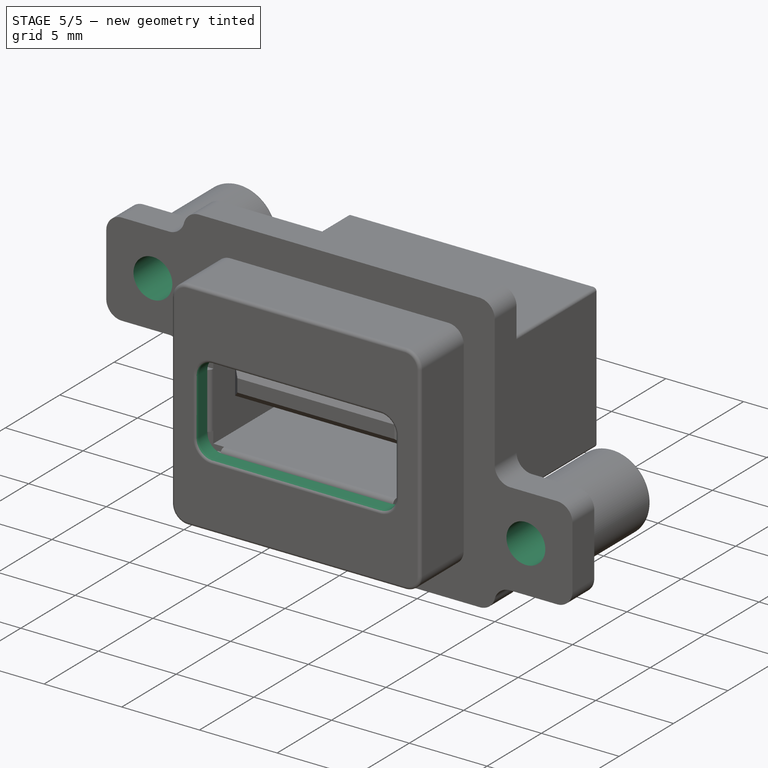
[diagram: stage 5 of 5 — iso view after this stage's code; geometry added in this stage tinted green]
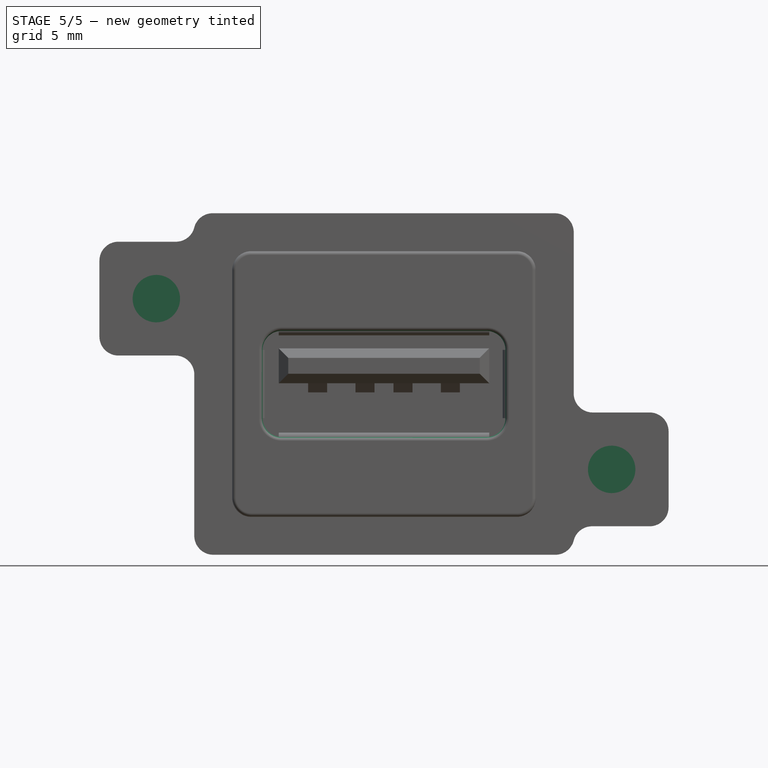
[diagram: stage 5 of 5 — front view after this stage's code; geometry added in this stage tinted green]
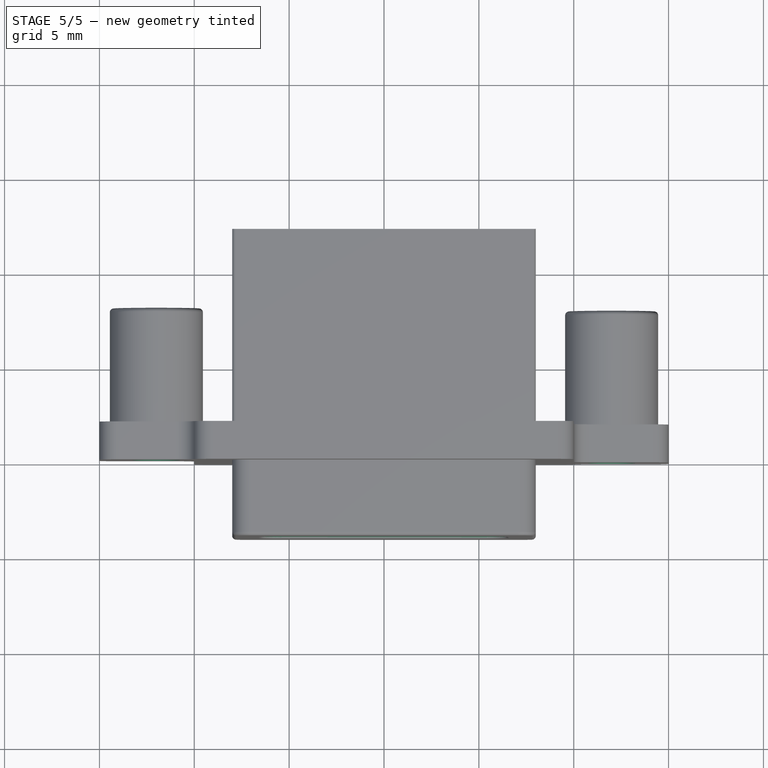
[diagram: stage 5 of 5 — top view after this stage's code; geometry added in this stage tinted green]
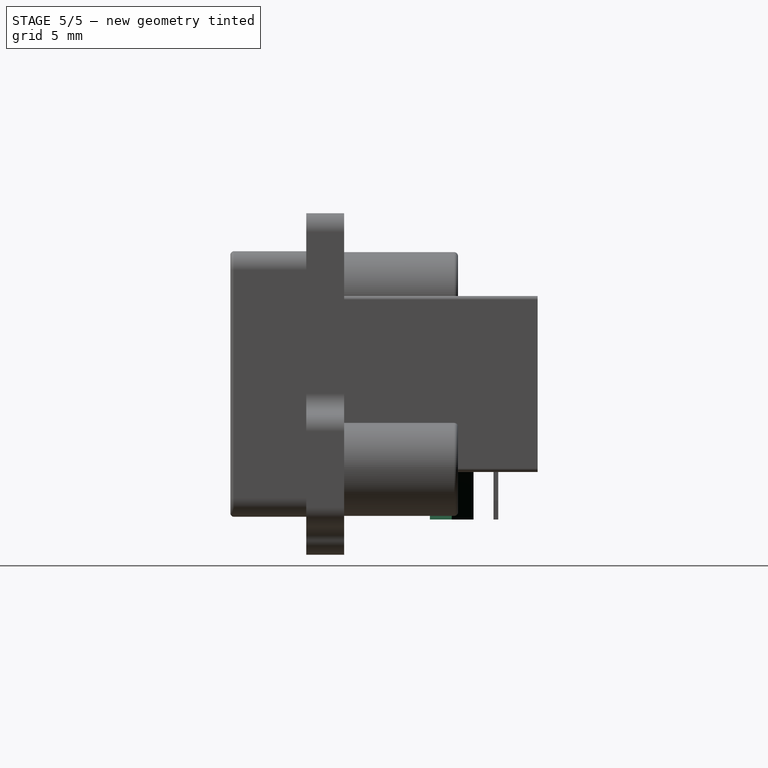
[diagram: stage 5 of 5 — right view after this stage's code; geometry added in this stage tinted green]
FEATURE [Sketcher::SketchObject] Sketch005
  ArcFitTolerance = 0
  AttachmentSupport = -> [XZ_Plane]
  ExternalGeometry = -> [DatumLine]
  FullyConstrained = true
  MakeInternals = false
  MapMode = 5
  Placement = pos=(0,0,0) rot=(1,0,0;1.5708rad)
  expr: Constraints[7] = <<Master>>.mnt_z
  expr: Constraints[9] = <<Master>>.mnt_x
  sketch-geometry (4):
    g0: Circle CenterX=-12 CenterY=9.14 CenterZ=0 NormalX=0 NormalY=0 NormalZ=1 AngleXU=0 Radius=1.25
    g1: Circle CenterX=12 CenterY=0.14 CenterZ=0 NormalX=0 NormalY=0 NormalZ=1 AngleXU=0 Radius=1.25
    g2: LineSegment [constr] StartX=-12 StartY=9.14 StartZ=0 EndX=0 EndY=4.64 EndZ=0
    g3: LineSegment [constr] StartX=0 StartY=4.64 StartZ=0 EndX=12 EndY=0.14 EndZ=0
  constraints (10):
    c: Equal(g1,g0)
    c: Radius(g0) = 1.25
    c: Coincident(g2,g0)
    c: Coincident(g2,g-3)
    c: Coincident(g3,g2)
    c: Coincident(g3,g1)
    c: Equal(g3,g2)
    c: DistanceY(g1,g0) = 9
    c: Parallel(g2,g3)
    c: DistanceX(g0,g1) = 24
FEATURE [PartDesign::Pocket] Pocket001
  BaseFeature = -> Pad003
  Direction = (0,1,-2e-16)
  Length = 5.5
  Length2 = 5
  Placement = pos=(0,0,0) rot=(1,0,0;1.5708rad)
  Profile = -> Sketch005
  ReferenceAxis = -> Sketch005 [N_Axis]
  Suppressed = false
  Type = 0
FEATURE [Sketcher::SketchObject] Sketch006
  ArcFitTolerance = 0
  AttachmentSupport = -> [XZ_Plane]
  ExternalGeometry = -> [DatumLine]
  FullyConstrained = true
  MakeInternals = false
  MapMode = 5
  Placement = pos=(0,0,0) rot=(1,0,0;1.5708rad)
  sketch-geometry (14):
    g0: LineSegment StartX=-5.4 StartY=7.44 StartZ=0 EndX=5.4 EndY=7.44 EndZ=0
    g1: LineSegment StartX=6.4 StartY=6.44 StartZ=0 EndX=6.4 EndY=2.84 EndZ=0
    g2: LineSegment StartX=5.4 StartY=1.84 StartZ=0 EndX=-5.4 EndY=1.84 EndZ=0
    g3: LineSegment StartX=-6.4 StartY=2.84 StartZ=0 EndX=-6.4 EndY=6.44 EndZ=0
    g4: LineSegment [constr] StartX=-6.4 StartY=1.84 StartZ=0 EndX=0 EndY=4.64 EndZ=0
    g5: LineSegment [constr] StartX=0 StartY=4.64 StartZ=0 EndX=6.4 EndY=7.44 EndZ=0
    g6: ArcOfCircle CenterX=-5.4 CenterY=6.44 CenterZ=0 NormalX=0 NormalY=0 NormalZ=1 AngleXU=0 Radius=1 StartAngle=1.5708 EndAngle=3.14159
    g7: GeomPoint [constr] X=-6.4 Y=7.44 Z=0
    g8: ArcOfCircle CenterX=5.4 CenterY=6.44 CenterZ=0 NormalX=0 NormalY=0 NormalZ=1 AngleXU=0 Radius=1 StartAngle=3e-16 EndAngle=1.5708
    g9: GeomPoint [constr] X=6.4 Y=7.44 Z=0
    g10: ArcOfCircle CenterX=5.4 CenterY=2.84 CenterZ=0 NormalX=0 NormalY=0 NormalZ=1 AngleXU=0 Radius=1 StartAngle=4.71239 EndAngle=6.28319
    g11: GeomPoint [constr] X=6.4 Y=1.84 Z=0
    g12: ArcOfCircle CenterX=-5.4 CenterY=2.84 CenterZ=0 NormalX=0 NormalY=0 NormalZ=1 AngleXU=0 Radius=1 StartAngle=3.14159 EndAngle=4.71239
    g13: GeomPoint [constr] X=-6.4 Y=1.84 Z=0
  constraints (31):
    c: Horizontal(g0)
    c: Vertical(g1)
    c: Vertical(g3)
    c: Symmetric(g13,g11,g-2)
    c: DistanceY(g13,g7) = 5.6
    c: Coincident(g4,g13)
    c: Coincident(g5,g4)
    c: Coincident(g5,g9)
    c: Parallel(g4,g5)
    c: DistanceX(g13,g11) = 12.8
    c: Coincident(g4,g-3)
    c: PointOnObject(g7,g0)
    c: PointOnObject(g7,g3)
    c: Tangent(g0,g6) = 1.5708
    c: Tangent(g3,g6) = 1.5708
    c: PointOnObject(g9,g1)
    c: PointOnObject(g9,g0)
    c: Tangent(g1,g8) = 1.5708
    c: Tangent(g0,g8) = 1.5708
    c: PointOnObject(g11,g2)
    c: PointOnObject(g11,g1)
    c: Tangent(g2,g10) = 1.5708
    c: Tangent(g1,g10) = 1.5708
    c: PointOnObject(g13,g3)
    c: PointOnObject(g13,g2)
    c: Tangent(g3,g12) = 1.5708
    c: Tangent(g2,g12) = 1.5708
    c: Equal(g12,g6)
    c: Equal(g6,g8)
    c: Equal(g8,g10)
    c: Radius(g6) = 1
FEATURE [PartDesign::Pocket] Pocket002
  BaseFeature = -> Pocket001
  Direction = (0,1,-2e-16)
  Length = 5
  Length2 = 5
  Placement = pos=(0,0,0) rot=(1,0,0;1.5708rad)
  Profile = -> Sketch006
  ReferenceAxis = -> Sketch006 [N_Axis]
  Reversed = true
  Suppressed = false
  Type = 1
FEATURE [Sketcher::SketchObject] Sketch007
  ArcFitTolerance = 0
  AttachmentSupport = -> [XY_Plane]
  FullyConstrained = true
  MakeInternals = false
  MapMode = 5
  sketch-geometry (17):
    g0: LineSegment StartX=-6.57 StartY=8.82 StartZ=0 EndX=-7.57 EndY=7.67 EndZ=0
    g1: LineSegment StartX=-7.57 StartY=7.67 StartZ=0 EndX=-6.57 EndY=6.52 EndZ=0
    g2: LineSegment StartX=-6.57 StartY=6.52 StartZ=0 EndX=-5.57 EndY=7.67 EndZ=0
    g3: LineSegment StartX=-5.57 StartY=7.67 StartZ=0 EndX=-6.57 EndY=8.82 EndZ=0
    g4: LineSegment StartX=6.57 StartY=8.67 StartZ=0 EndX=5.42 EndY=7.67 EndZ=0
    g5: LineSegment StartX=5.42 StartY=7.67 StartZ=0 EndX=6.57 EndY=6.67 EndZ=0
    g6: LineSegment StartX=6.57 StartY=6.67 StartZ=0 EndX=7.72 EndY=7.67 EndZ=0
    g7: LineSegment [constr] StartX=-7.57 StartY=7.67 StartZ=0 EndX=-6.57 EndY=7.67 EndZ=0
    g8: LineSegment [constr] StartX=-6.57 StartY=7.67 StartZ=0 EndX=-5.57 EndY=7.67 EndZ=0
    g9: LineSegment [constr] StartX=-5.57 StartY=7.67 StartZ=0 EndX=5.42 EndY=7.67 EndZ=0
    g10: LineSegment [constr] StartX=-6.57 StartY=8.82 StartZ=0 EndX=-6.57 EndY=7.67 EndZ=0
    g11: LineSegment [constr] StartX=-6.57 StartY=7.67 StartZ=0 EndX=-6.57 EndY=6.52 EndZ=0
    g12: LineSegment [constr] StartX=6.57 StartY=8.67 StartZ=0 EndX=6.57 EndY=7.67 EndZ=0
    g13: LineSegment [constr] StartX=6.57 StartY=7.67 StartZ=0 EndX=6.57 EndY=6.67 EndZ=0
    g14: LineSegment [constr] StartX=5.42 StartY=7.67 StartZ=0 EndX=6.57 EndY=7.67 EndZ=0
    g15: LineSegment [constr] StartX=7.72 StartY=7.67 StartZ=0 EndX=6.57 EndY=7.67 EndZ=0
    g16: LineSegment StartX=6.57 StartY=8.67 StartZ=0 EndX=7.72 EndY=7.67 EndZ=0
  constraints (43):
    c: Coincident(g0,g1)
    c: Coincident(g1,g2)
    c: Coincident(g2,g3)
    c: Coincident(g3,g0)
    c: Coincident(g4,g5)
    c: Coincident(g5,g6)
    c: DistanceY(g-1,g0) = 7.67
    c: Coincident(g0,g7)
    c: Horizontal(g7)
    c: Coincident(g7,g8)
    c: Coincident(g8,g2)
    c: Horizontal(g8)
    c: Coincident(g8,g9)
    c: Coincident(g9,g4)
    c: Coincident(g10,g7)
    c: Coincident(g10,g11)
    c: Coincident(g11,g1)
    c: Coincident(g4,g12)
    c: Vertical(g12)
    c: Coincident(g12,g13)
    c: Coincident(g13,g5)
    c: Vertical(g13)
    c: Vertical(g11)
    c: Vertical(g10)
    c: Equal(g7,g8)
    c: Coincident(g10,g0)
    c: Equal(g10,g11)
    c: Equal(g12,g13)
    c: Equal(g7,g12)
    c: Coincident(g14,g4)
    c: Coincident(g14,g12)
    c: Horizontal(g14)
    c: Coincident(g15,g6)
    c: Coincident(g15,g12)
    c: Coincident(g16,g4)
    c: Coincident(g16,g6)
    c: Horizontal(g15)
    c: Equal(g14,g15)
    c: Equal(g15,g11)
    c: DistanceX(g1,g5) = 13.14
    c: Symmetric(g7,g12,g-2)
    c: DistanceY(g1,g0) = 2.3
    c: DistanceY(g5,g4) = 2
FEATURE [PartDesign::Pad] Pad004
  BaseFeature = -> Pocket002
  Direction = (0,0,1)
  Length = 2.5
  Length2 = 10
  Placement = pos=(0,0,0) rot=(1,0,0;1.5708rad)
  Profile = -> Sketch007
  ReferenceAxis = -> Sketch007 [N_Axis]
  Reversed = true
  Suppressed = false
  Type = 0
FEATURE [Sketcher::SketchObject] Sketch008
  ArcFitTolerance = 0
  AttachmentSupport = -> [XY_Plane]
  FullyConstrained = true
  MakeInternals = false
  MapMode = 5
  expr: Constraints[5] = <<Master>>.metal_back_tot
  sketch-geometry (8):
    g0: LineSegment StartX=-5.75 StartY=12.2 StartZ=0 EndX=5.75 EndY=12.2 EndZ=0
    g1: LineSegment StartX=5.75 StartY=12.2 StartZ=0 EndX=5.75 EndY=10.2 EndZ=0
    g2: LineSegment StartX=4.75 StartY=9.2 StartZ=0 EndX=-4.75 EndY=9.2 EndZ=0
    g3: LineSegment StartX=-5.75 StartY=10.2 StartZ=0 EndX=-5.75 EndY=12.2 EndZ=0
    g4: ArcOfCircle CenterX=-4.75 CenterY=10.2 CenterZ=0 NormalX=0 NormalY=0 NormalZ=1 AngleXU=0 Radius=1 StartAngle=3.14159 EndAngle=4.71239
    g5: GeomPoint [constr] X=-5.75 Y=9.2 Z=0
    g6: ArcOfCircle CenterX=4.75 CenterY=10.2 CenterZ=0 NormalX=0 NormalY=0 NormalZ=1 AngleXU=0 Radius=1 StartAngle=4.71239 EndAngle=6.28319
    g7: GeomPoint [constr] X=5.75 Y=9.2 Z=0
  constraints (19):
    c: Coincident(g0,g1)
    c: Coincident(g3,g0)
    c: Vertical(g1)
    c: Vertical(g3)
    c: DistanceX(g5,g7) = 11.5
    c: DistanceY(g-1,g0) = 12.2
    c: Horizontal(g2)
    c: Distance(g5,g3) = 3
    c: PointOnObject(g5,g2)
    c: PointOnObject(g5,g3)
    c: Tangent(g2,g4) = 1.5708
    c: Tangent(g3,g4) = 1.5708
    c: PointOnObject(g7,g1)
    c: PointOnObject(g7,g2)
    c: Tangent(g1,g6) = 1.5708
    c: Tangent(g2,g6) = 1.5708
    c: Equal(g4,g6)
    c: Radius(g4) = 1
    c: Symmetric(g0,g0,g-2)
FEATURE [PartDesign::Pocket] Pocket003
  BaseFeature = -> Pad004
  Direction = (0,0,-1)
  Length = 1
  Length2 = 5
  Placement = pos=(0,0,0) rot=(1,0,0;1.5708rad)
  Profile = -> Sketch008
  ReferenceAxis = -> Sketch008 [N_Axis]
  Refine = true
  Reversed = true
  Suppressed = false
  Type = 0
FEATURE [PartDesign::Fillet] Fillet
  Base = -> Pocket003 [Edge180,Edge185,Edge78,Edge110]
  BaseFeature = -> Pocket003
  Placement = pos=(0,0,0) rot=(1,0,0;1.5708rad)
  Radius = 0.2
  SupportTransform = false
  Suppressed = false
  UseAllEdges = false
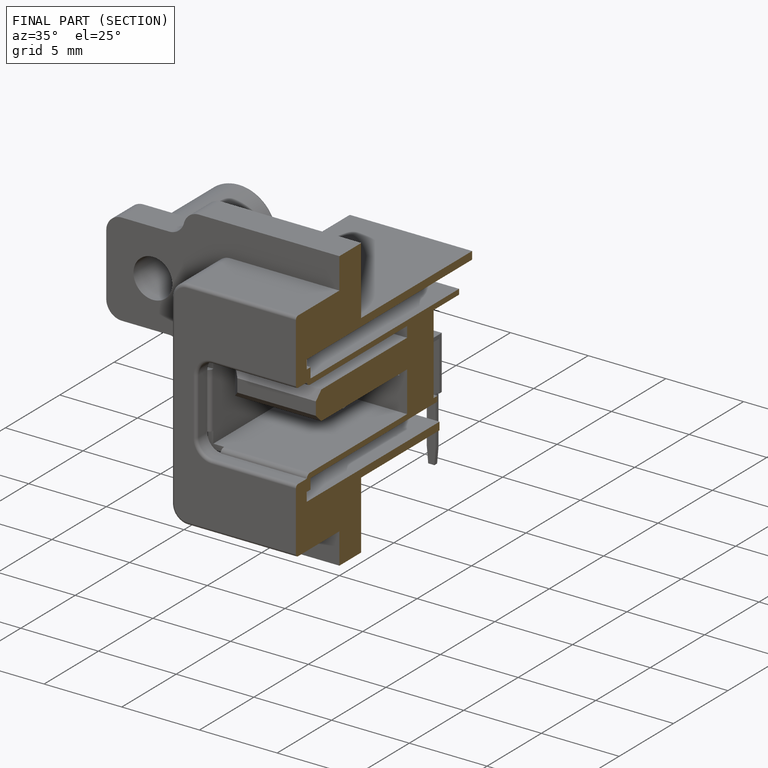
[diagram: finished part — half-section view (interior)]
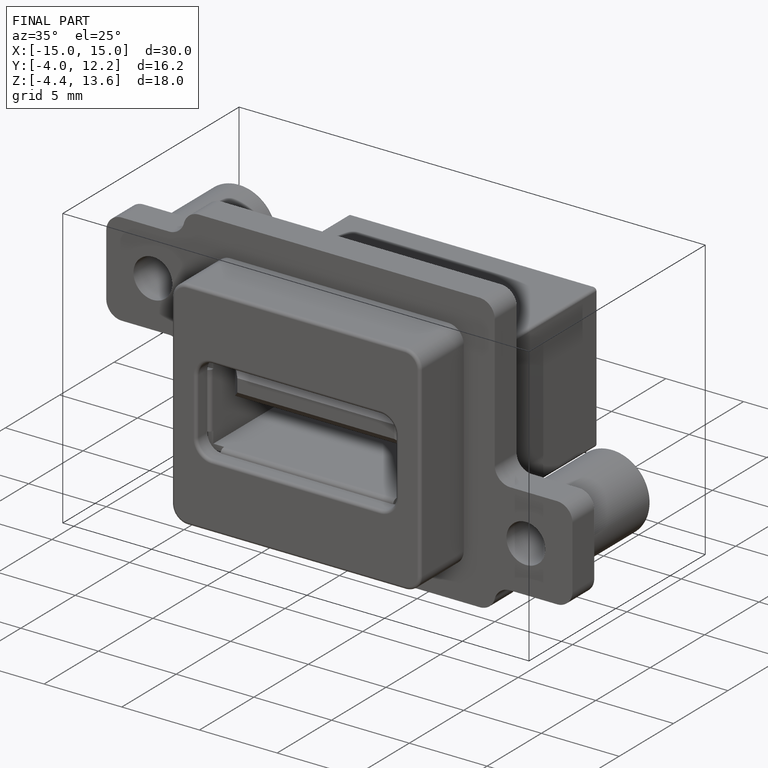
[diagram: finished part — iso view with bounding-box wireframe]
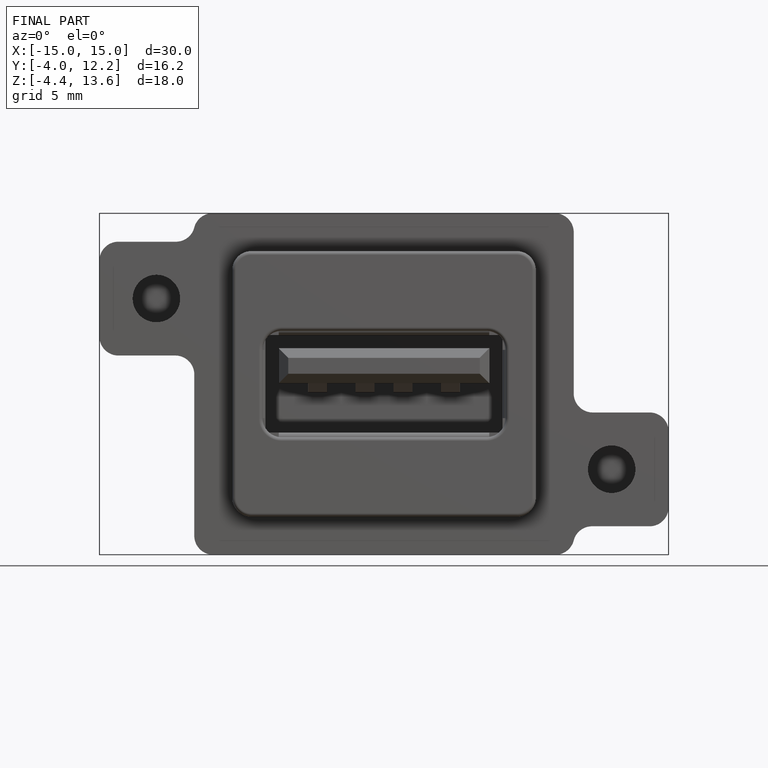
[diagram: finished part — front view with bounding-box wireframe]
